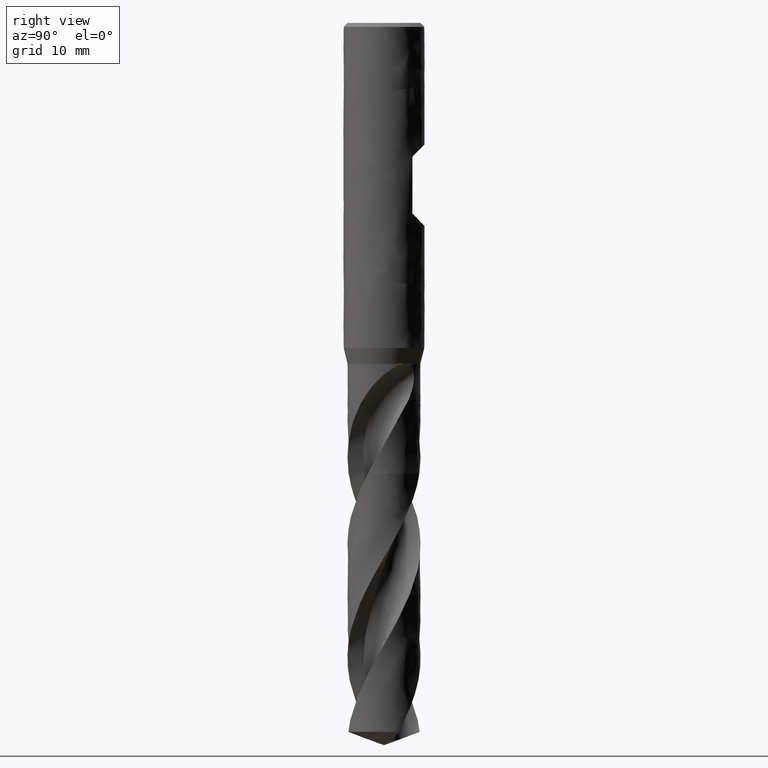
[diagram: clean part render]
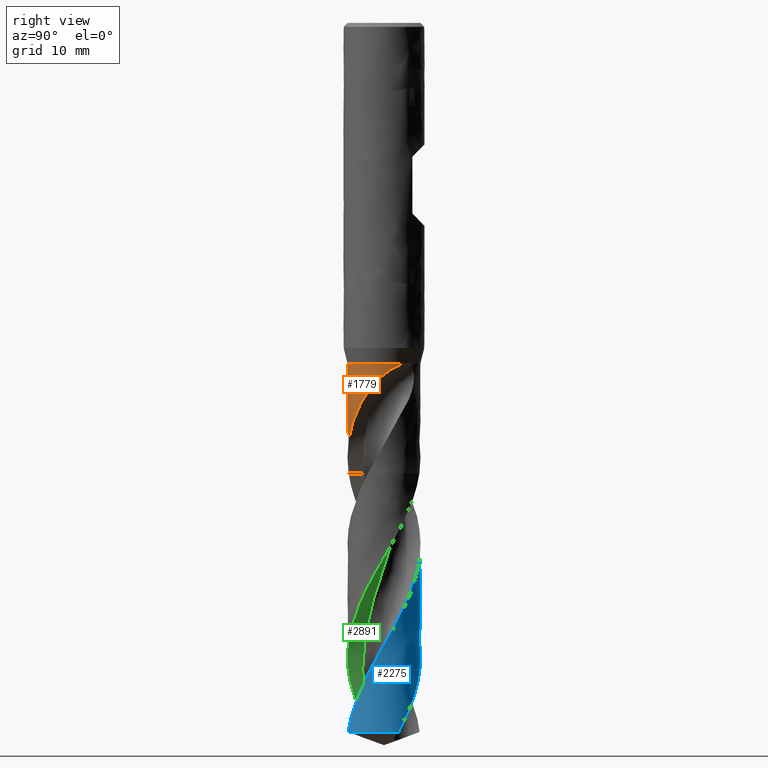
[diagram: same view with three faces highlighted in distinct colors, each labeled with its STEP entity id]
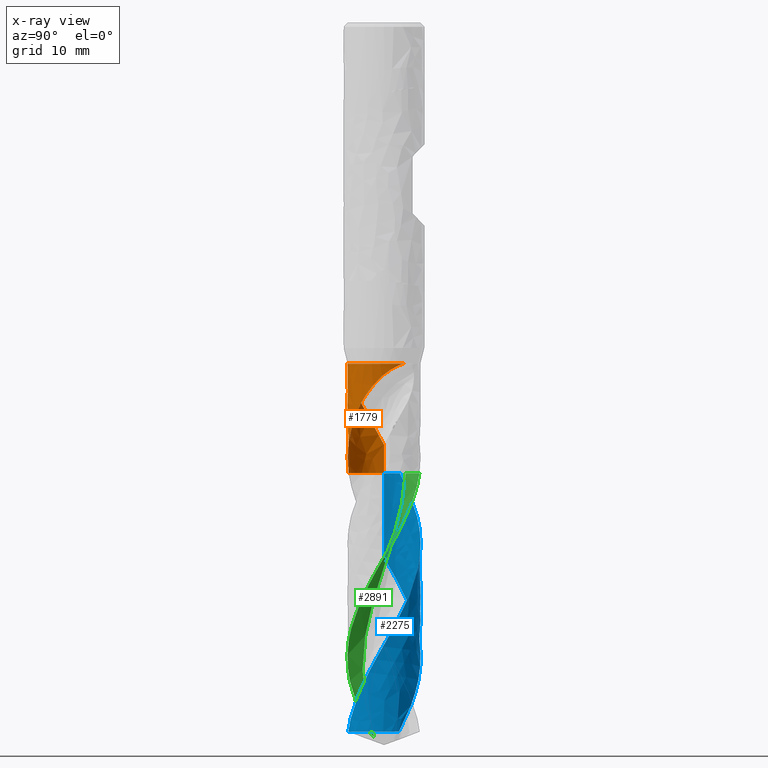
[diagram: x-ray of the same camera — body ghosted, the three highlighted faces saturated]
A machine part, right view with three faces highlighted in distinct colors.
The next image is the same camera in x-ray (body ghosted, the three faces saturated) — at least one of them is partly hidden behind the body in this view.
Their STEP definitions:

[orange] entity #1779 — the highlighted face is a freeform B-spline surface patch.
#75 = VERTEX_POINT('', #76);
#76 = CARTESIAN_POINT('', (-3.44069391722671, -2.9002802223163, -42.));
#86 = EDGE_CURVE('', #87, #75, #89, .T.);
#87 = VERTEX_POINT('', #88);
#88 = CARTESIAN_POINT('', (3.72173152774885, 2.52956803335278, -42.));
#89 = CIRCLE('', #90, 4.5);
#90 = AXIS2_PLACEMENT_3D('', #91, #92, #93);
#91 = CARTESIAN_POINT('', (1.57474777179495E-31, 2.57175827820944E-15, -42.));
#92 = DIRECTION('', (3.74939945665464E-33, 6.12323399573677E-17, -1.));
#93 = DIRECTION('', (-1., 6.12323399573677E-17, 0.));
#523 = VERTEX_POINT('', #524);
#524 = CARTESIAN_POINT('', (-1.11183896799399, -4.36048324262919, -55.5));
#533 = VERTEX_POINT('', #534);
#534 = CARTESIAN_POINT('', (4.29539669869406, -1.34147948208244, -44.6514118858238));
#554 = EDGE_CURVE('', #533, #523, #555, .T.);
#555 = B_SPLINE_CURVE_WITH_KNOTS('', 3, (#556, #557, #558, #559, #560, #561, #562, #563, #564, #565, #566, #567, #568, #569, #570, #571, #572, #573, #574, #575, #576, #577, #578, #579, #580, #581, #582, #583, #584, #585, #586, #587, #588, #589, #590, #591, #592, #593, #594, #595, #596, #597, #598, #599, #600, #601, #602, #603, #604, #605, #606, #607, #608, #609, #610, #611, #612, #613, #614, #615, #616, #617, #618, #619, #620, #621, #622, #623, #624, #625, #626, #627, #628, #629, #630, #631, #632, #633, #634, #635, #636, #637, #638, #639, #640, #641, #642, #643, #644, #645, #646, #647, #648, #649, #650, #651, #652, #653, #654, #655, #656, #657, #658, #659, #660, #661, #662, #663, #664), .UNSPECIFIED., .F., .U., (4, 3, 3, 3, 3, 3, 3, 3, 3, 3, 3, 3, 3, 3, 3, 3, 3, 3, 3, 3, 3, 3, 3, 3, 3, 3, 3, 3, 3, 3, 3, 3, 3, 3, 3, 3, 4), (0., 0.442316919703614, 0.884663411420729, 1.17981335267308, 1.47498446681071, 1.7701781735896, 2.21274049600664, 2.50800136069736, 2.8032924095188, 3.09861383894043, 3.39397508685774, 3.6893760138176, 3.9848130476933, 4.64955487547151, 4.94504723879927, 5.24058594565355, 5.53618187669094, 5.83180772391068, 6.02885477657867, 6.22586025083168, 6.42284567200576, 6.61983339189686, 6.81684562731947, 7.26003274004493, 7.70307422773444, 8.14605008551358, 8.58901752051184, 9.03195736241554, 9.47484739424819, 9.67180070334425, 10.114654115417, 10.5575013692184, 10.6158817940916, 11.2821115342085, 11.5779058537086, 12.2439721220954, 12.8428846972362), .UNSPECIFIED.);
#556 = CARTESIAN_POINT('', (4.29539669869406, -1.34147948208244, -44.6514118858238));
#557 = CARTESIAN_POINT('', (4.26703302288412, -1.43229953640613, -44.7640416796425));
#558 = CARTESIAN_POINT('', (4.23598446240087, -1.5215878332831, -44.877272118116));
#559 = CARTESIAN_POINT('', (4.20245100871911, -1.60916298718193, -44.9910453607182));
#560 = CARTESIAN_POINT('', (4.16891531308887, -1.696743996099, -45.1048262098661));
#561 = CARTESIAN_POINT('', (4.13287982148164, -1.78264919245886, -45.2191994039562));
#562 = CARTESIAN_POINT('', (4.09455913170755, -1.86670445356265, -45.3341228369591));
#563 = CARTESIAN_POINT('', (4.06899015004418, -1.92278923289577, -45.4108040023678));
#564 = CARTESIAN_POINT('', (4.0423978278864, -1.97806503375079, -45.4877467244849));
#565 = CARTESIAN_POINT('', (4.01484450553339, -2.03249196711534, -45.5649335094706));
#566 = CARTESIAN_POINT('', (3.98728920661439, -2.08692280485206, -45.6421258315298));
#567 = CARTESIAN_POINT('', (3.95876787544659, -2.14051428162229, -45.7195757961143));
#568 = CARTESIAN_POINT('', (3.92934472401294, -2.19322822338936, -45.7972686766326));
#569 = CARTESIAN_POINT('', (3.89991932050694, -2.24594619992514, -45.8749675038282));
#570 = CARTESIAN_POINT('', (3.86958690097149, -2.29779550232363, -45.9529224163218));
#571 = CARTESIAN_POINT('', (3.83841444450393, -2.34873892806834, -46.0311221126145));
#572 = CARTESIAN_POINT('', (3.79167986170992, -2.42511467826801, -46.1483611946438));
#573 = CARTESIAN_POINT('', (3.74304534327969, -2.49947247374775, -46.2661897243262));
#574 = CARTESIAN_POINT('', (3.69273093785549, -2.57171892332836, -46.3845590190456));
#575 = CARTESIAN_POINT('', (3.65916306707333, -2.61991902553658, -46.4635305413406));
#576 = CARTESIAN_POINT('', (3.62484074910354, -2.66718962705234, -46.5427578155728));
#577 = CARTESIAN_POINT('', (3.58983048937862, -2.71350641376202, -46.6222285027361));
#578 = CARTESIAN_POINT('', (3.5548166506008, -2.75982793537602, -46.7017073140835));
#579 = CARTESIAN_POINT('', (3.51910943720359, -2.80520239251452, -46.7814413729313));
#580 = CARTESIAN_POINT('', (3.48277803967741, -2.84960648622592, -46.8614216188627));
#581 = CARTESIAN_POINT('', (3.44644290424699, -2.89401514838943, -46.9414100934481));
#582 = CARTESIAN_POINT('', (3.40947978399968, -2.93745790307385, -47.0216579124377));
#583 = CARTESIAN_POINT('', (3.37195357508556, -2.97992098678266, -47.1021513753703));
#584 = CARTESIAN_POINT('', (3.33442230647364, -3.02238979583323, -47.1826556913203));
#585 = CARTESIAN_POINT('', (3.29632196275392, -3.0638853058775, -47.2634160985385));
#586 = CARTESIAN_POINT('', (3.25771626373282, -3.10439764608382, -47.3444191296328));
#587 = CARTESIAN_POINT('', (3.21910537839433, -3.14491542874706, -47.4254330427326));
#588 = CARTESIAN_POINT('', (3.17998379092743, -3.18445519217679, -47.5067002908115));
#589 = CARTESIAN_POINT('', (3.14041748197054, -3.22300760764443, -47.588210803946));
#590 = CARTESIAN_POINT('', (3.10084633681559, -3.26156473538172, -47.6697312801271));
#591 = CARTESIAN_POINT('', (3.0608254662314, -3.29913898250181, -47.7515056159124));
#592 = CARTESIAN_POINT('', (3.0204240592769, -3.33572158642494, -47.8335272903121));
#593 = CARTESIAN_POINT('', (2.92951973102994, -3.41803349796064, -48.0180784179842));
#594 = CARTESIAN_POINT('', (2.83665040461999, -3.49535386325522, -48.2039630996826));
#595 = CARTESIAN_POINT('', (2.74256138533986, -3.56768230755524, -48.3910828981963));
#596 = CARTESIAN_POINT('', (2.70073674679831, -3.59983389189809, -48.4742617643029));
#597 = CARTESIAN_POINT('', (2.65866354916189, -3.6310062301845, -48.5577004100712));
#598 = CARTESIAN_POINT('', (2.61640235821721, -3.66120727355276, -48.6413881466344));
#599 = CARTESIAN_POINT('', (2.57413453924125, -3.69141305349978, -48.7250890083586));
#600 = CARTESIAN_POINT('', (2.53167048049944, -3.7206532146681, -48.8090451057766));
#601 = CARTESIAN_POINT('', (2.48906203530184, -3.74894254216029, -48.8932414611873));
#602 = CARTESIAN_POINT('', (2.44644533997181, -3.77723734722147, -48.9774541192601));
#603 = CARTESIAN_POINT('', (2.40367937469677, -3.80458385219288, -49.0619155363511));
#604 = CARTESIAN_POINT('', (2.36083431713313, -3.83098699123957, -49.1466251921457));
#605 = CARTESIAN_POINT('', (2.31798492337803, -3.85739280245134, -49.2313434210945));
#606 = CARTESIAN_POINT('', (2.27505168108673, -3.88285761557548, -49.3163182382829));
#607 = CARTESIAN_POINT('', (2.23213053143173, -3.90737677869063, -49.4015655331349));
#608 = CARTESIAN_POINT('', (2.20352178116115, -3.92371983147564, -49.4583864381961));
#609 = CARTESIAN_POINT('', (2.17492043288559, -3.93964196099856, -49.5153337450176));
#610 = CARTESIAN_POINT('', (2.14633623603314, -3.9551536963677, -49.5723995051061));
#611 = CARTESIAN_POINT('', (2.11775807066191, -3.97066215864363, -49.6294532238887));
#612 = CARTESIAN_POINT('', (2.08919598984207, -3.98576117404228, -49.6866277017202));
#613 = CARTESIAN_POINT('', (2.06063699857145, -4.00047186718247, -49.7439018694576));
#614 = CARTESIAN_POINT('', (2.03208091430485, -4.01518106292931, -49.801170207289));
#615 = CARTESIAN_POINT('', (2.00352695701577, -4.02950270930624, -49.8585403052117));
#616 = CARTESIAN_POINT('', (1.97493742309401, -4.0434666036537, -49.9159782814201));
#617 = CARTESIAN_POINT('', (1.94634755554731, -4.05743066095252, -49.9734169278997));
#618 = CARTESIAN_POINT('', (1.91772120518949, -4.07103759030877, -50.0309252053642));
#619 = CARTESIAN_POINT('', (1.88899537123002, -4.08432325942396, -50.0884568574479));
#620 = CARTESIAN_POINT('', (1.86026596228076, -4.0976105819683, -50.1459956694654));
#621 = CARTESIAN_POINT('', (1.8314343988039, -4.11057791684065, -50.203558338987));
#622 = CARTESIAN_POINT('', (1.80241900273627, -4.12326154137415, -50.2610898888278));
#623 = CARTESIAN_POINT('', (1.73714767793651, -4.15179387554029, -50.3905094723876));
#624 = CARTESIAN_POINT('', (1.67099240158538, -4.17886491749489, -50.5198167982899));
#625 = CARTESIAN_POINT('', (1.60408906283004, -4.20439035753211, -50.6490308212022));
#626 = CARTESIAN_POINT('', (1.53720770756843, -4.22990741026966, -50.7782023862086));
#627 = CARTESIAN_POINT('', (1.46957002223301, -4.25388450157391, -50.9072981764263));
#628 = CARTESIAN_POINT('', (1.40124605299674, -4.27627285132287, -51.0362947883646));
#629 = CARTESIAN_POINT('', (1.33293220492543, -4.29865788457568, -51.1652722914015));
#630 = CARTESIAN_POINT('', (1.26391377986457, -4.31946067746219, -51.2941631108594));
#631 = CARTESIAN_POINT('', (1.19426446908471, -4.33863254699932, -51.4229438577435));
#632 = CARTESIAN_POINT('', (1.1246164826228, -4.35780405200088, -51.5517221559794));
#633 = CARTESIAN_POINT('', (1.05432818150173, -4.3753470670706, -51.6804087188353));
#634 = CARTESIAN_POINT('', (0.983489254019049, -4.39121268981918, -51.8089869716103));
#635 = CARTESIAN_POINT('', (0.912654739197595, -4.40707732427473, -51.9375572150564));
#636 = CARTESIAN_POINT('', (0.84125914165282, -4.42126688629207, -52.0660373692451));
#637 = CARTESIAN_POINT('', (0.769409567440227, -4.43373532335112, -52.1944184401978));
#638 = CARTESIAN_POINT('', (0.697568072953273, -4.44620235829259, -52.3227850742684));
#639 = CARTESIAN_POINT('', (0.625262735416338, -4.45695035750218, -52.4510715957801));
#640 = CARTESIAN_POINT('', (0.552604986505964, -4.46594085595507, -52.5792692653916));
#641 = CARTESIAN_POINT('', (0.520294067201336, -4.46993893288941, -52.6362788014696));
#642 = CARTESIAN_POINT('', (0.487912006949022, -4.47358976100607, -52.6932734800191));
#643 = CARTESIAN_POINT('', (0.455468494529896, -4.4768904889991, -52.7502523447493));
#644 = CARTESIAN_POINT('', (0.382518614985474, -4.48431224119382, -52.8783704493784));
#645 = CARTESIAN_POINT('', (0.309242223894214, -4.48996441690553, -53.0064178839288));
#646 = CARTESIAN_POINT('', (0.235782286221555, -4.49381872281294, -53.1344014686107));
#647 = CARTESIAN_POINT('', (0.162323370074785, -4.49767297512279, -53.2623832735669));
#648 = CARTESIAN_POINT('', (0.088670210823042, -4.49972863895085, -53.390320478117));
#649 = CARTESIAN_POINT('', (0.0150484078853029, -4.49997483830967, -53.5182664805565));
#650 = CARTESIAN_POINT('', (0.00534286698255215, -4.50000729469965, -53.5351335649047));
#651 = CARTESIAN_POINT('', (-0.00436206600224824, -4.50000834886925, -53.5520010887193));
#652 = CARTESIAN_POINT('', (-0.0140660132762324, -4.49997801630969, -53.568869093915));
#653 = CARTESIAN_POINT('', (-0.124806184908924, -4.49963186512434, -53.7613645535184));
#654 = CARTESIAN_POINT('', (-0.235437119924951, -4.49519748621445, -53.9539586342081));
#655 = CARTESIAN_POINT('', (-0.345704486119695, -4.4867012836022, -54.146538305761));
#656 = CARTESIAN_POINT('', (-0.394661262712901, -4.48292911865864, -54.2320403022444));
#657 = CARTESIAN_POINT('', (-0.443553087976092, -4.47835593161567, -54.317547926119));
#658 = CARTESIAN_POINT('', (-0.492362173052154, -4.47298328753276, -54.4030487712318));
#659 = CARTESIAN_POINT('', (-0.602269913048384, -4.46088522898409, -54.5955785971743));
#660 = CARTESIAN_POINT('', (-0.711779287959528, -4.4447274967744, -54.7881238698577));
#661 = CARTESIAN_POINT('', (-0.820524786026728, -4.42456089070045, -54.9806375910798));
#662 = CARTESIAN_POINT('', (-0.918306417335176, -4.40642750886016, -55.1537418210933));
#663 = CARTESIAN_POINT('', (-1.01549655610529, -4.38504869600858, -55.3268820645381));
#664 = CARTESIAN_POINT('', (-1.11183896799399, -4.36048324262919, -55.5));
#887 = EDGE_CURVE('', #533, #87, #888, .T.);
#888 = B_SPLINE_CURVE_WITH_KNOTS('', 3, (#889, #890, #891, #892, #893, #894, #895, #896, #897, #898, #899, #900, #901, #902, #903, #904, #905, #906, #907, #908, #909, #910, #911, #912, #913, #914, #915, #916, #917, #918, #919, #920, #921, #922, #923, #924, #925, #926, #927, #928, #929, #930, #931, #932, #933, #934, #935, #936, #937, #938, #939, #940, #941, #942, #943), .UNSPECIFIED., .F., .U., (4, 3, 3, 3, 3, 3, 3, 3, 3, 3, 3, 3, 3, 3, 3, 3, 3, 3, 4), (0., 0.447380350143243, 0.894897015395336, 1.3424632426885, 1.78998473153669, 1.87771071181494, 1.93617527716835, 2.23535694717134, 2.5345971215063, 2.83387898068143, 3.13318138583523, 3.43247645087693, 3.73172578677382, 4.03087465767769, 4.22940212511567, 4.42784140952585, 4.62615929176112, 4.8243119460954, 4.93825071399921), .UNSPECIFIED.);
#889 = CARTESIAN_POINT('', (4.29539669869406, -1.34147948208244, -44.6514118858238));
#890 = CARTESIAN_POINT('', (4.32408506816386, -1.24961976364664, -44.5374927605302));
#891 = CARTESIAN_POINT('', (4.35057512189034, -1.15443300244147, -44.4256059738919));
#892 = CARTESIAN_POINT('', (4.37430159509922, -1.05616549608117, -44.3159731814237));
#893 = CARTESIAN_POINT('', (4.39803529767519, -0.957868047981538, -44.2063069842562));
#894 = CARTESIAN_POINT('', (4.41902552932334, -0.856394272690696, -44.0987818685925));
#895 = CARTESIAN_POINT('', (4.43671063472103, -0.75206299187854, -43.9936411408358));
#896 = CARTESIAN_POINT('', (4.45439769872717, -0.647720156477188, -43.8884887688445));
#897 = CARTESIAN_POINT('', (4.46879832793187, -0.540402390431012, -43.7856030435393));
#898 = CARTESIAN_POINT('', (4.47936178043881, -0.430485818516774, -43.6852833467799));
#899 = CARTESIAN_POINT('', (4.48992417702953, -0.320580233795504, -43.5849736779156));
#900 = CARTESIAN_POINT('', (4.4966627626958, -0.20793449241316, -43.4871052190702));
#901 = CARTESIAN_POINT('', (4.49903864304257, -0.0930123024641114, -43.392025900119));
#902 = CARTESIAN_POINT('', (4.49950437806902, -0.0704845311274726, -43.3733878533056));
#903 = CARTESIAN_POINT('', (4.49980270937699, -0.0478658886663109, -43.354854158472));
#904 = CARTESIAN_POINT('', (4.49992966242508, -0.0251601515675194, -43.3364278846963));
#905 = CARTESIAN_POINT('', (4.50001426968457, -0.0100280202844153, -43.3241477815392));
#906 = CARTESIAN_POINT('', (4.50002276376129, 0.00514326660429612, -43.3119150065098));
#907 = CARTESIAN_POINT('', (4.49995397454265, 0.0203525673515486, -43.2997305111189));
#908 = CARTESIAN_POINT('', (4.49960195835666, 0.0981833691309666, -43.2373785949258));
#909 = CARTESIAN_POINT('', (4.49722502273323, 0.177043287703379, -43.1762634882786));
#910 = CARTESIAN_POINT('', (4.49266833680893, 0.256770744898528, -43.1165283373492));
#911 = CARTESIAN_POINT('', (4.48811075983451, 0.336513792626419, -43.0567815053395));
#912 = CARTESIAN_POINT('', (4.48136907049895, 0.417184457394232, -42.998370165985));
#913 = CARTESIAN_POINT('', (4.47229175854021, 0.498604479017039, -42.9414685703084));
#914 = CARTESIAN_POINT('', (4.46321318209116, 0.580035842634936, -42.8845590481095));
#915 = CARTESIAN_POINT('', (4.45179056072341, 0.662285131379562, -42.8291115503776));
#916 = CARTESIAN_POINT('', (4.43787630436955, 0.74515361309951, -42.775339908637));
#917 = CARTESIAN_POINT('', (4.42396109278903, 0.828027783817992, -42.7215645754231));
#918 = CARTESIAN_POINT('', (4.40754041236613, 0.911600161909595, -42.6694135705193));
#919 = CARTESIAN_POINT('', (4.38847223169022, 0.995646258308565, -42.6191521945564));
#920 = CARTESIAN_POINT('', (4.36940451864364, 1.07969029355547, -42.5688920512069));
#921 = CARTESIAN_POINT('', (4.34766812773619, 1.16430021738919, -42.5204655131157));
#922 = CARTESIAN_POINT('', (4.32313015540568, 1.24921801917121, -42.474206304245));
#923 = CARTESIAN_POINT('', (4.29859593221982, 1.33412284640434, -42.427954163296));
#924 = CARTESIAN_POINT('', (4.2712287259808, 1.41944478498498, -42.3838079720166));
#925 = CARTESIAN_POINT('', (4.24091207942414, 1.50488030573677, -42.3421943796144));
#926 = CARTESIAN_POINT('', (4.21060561087399, 1.59028714378833, -42.3005947578672));
#927 = CARTESIAN_POINT('', (4.17730356464705, 1.67593973393992, -42.2614599709309));
#928 = CARTESIAN_POINT('', (4.1409207782757, 1.76146958760138, -42.2253452157752));
#929 = CARTESIAN_POINT('', (4.11677566813433, 1.8182307085324, -42.2013779821482));
#930 = CARTESIAN_POINT('', (4.09125031582411, 1.87499410677504, -42.1787185913911));
#931 = CARTESIAN_POINT('', (4.06433368952848, 1.93162927606821, -42.1575716694209));
#932 = CARTESIAN_POINT('', (4.0374290192087, 1.98823928883884, -42.1364341406075));
#933 = CARTESIAN_POINT('', (4.009107476955, 2.04477672247036, -42.1167866862191));
#934 = CARTESIAN_POINT('', (3.97937674569605, 2.10108560411363, -42.0988773751732));
#935 = CARTESIAN_POINT('', (3.94966420325211, 2.15736003682851, -42.0809790207749));
#936 = CARTESIAN_POINT('', (3.91850859640666, 2.21347230956991, -42.0647953742415));
#937 = CARTESIAN_POINT('', (3.88594764625455, 2.26923134355419, -42.0506280632629));
#938 = CARTESIAN_POINT('', (3.85341382415255, 2.32494392207997, -42.0364725557336));
#939 = CARTESIAN_POINT('', (3.81942914555438, 2.38038391571042, -42.0243096036238));
#940 = CARTESIAN_POINT('', (3.78407974105027, 2.43531117382828, -42.0145047427463));
#941 = CARTESIAN_POINT('', (3.76375365655313, 2.46689462213136, -42.008866898673));
#942 = CARTESIAN_POINT('', (3.74296180251267, 2.49833211406163, -42.0040052444348));
#943 = CARTESIAN_POINT('', (3.72173152774885, 2.52956803335278, -42.));
#1170 = EDGE_CURVE('', #1171, #1173, #1175, .T.);
#1171 = VERTEX_POINT('', #1172);
#1172 = CARTESIAN_POINT('', (-4.12385104394005, -1.80106983967712, -48.6947415750099));
#1173 = VERTEX_POINT('', #1174);
#1174 = CARTESIAN_POINT('', (-4.45194043634564, -0.655916420918673, -50.7856573626947));
#1175 = B_SPLINE_CURVE_WITH_KNOTS('', 3, (#1176, #1177, #1178, #1179, #1180, #1181, #1182, #1183, #1184, #1185, #1186, #1187, #1188, #1189, #1190, #1191, #1192, #1193, #1194, #1195, #1196, #1197, #1198, #1199, #1200, #1201, #1202, #1203, #1204, #1205, #1206, #1207, #1208, #1209), .UNSPECIFIED., .F., .U., (4, 3, 3, 3, 3, 3, 3, 3, 3, 3, 3, 4), (0., 0.295439691773834, 0.590954220280569, 0.787983847565842, 0.875555856625251, 1.07256570003711, 1.26954016174876, 1.46650024332261, 1.66346796548771, 1.79480972052039, 2.23788693835514, 2.40915931169225), .UNSPECIFIED.);
#1176 = CARTESIAN_POINT('', (-4.12385104394005, -1.80106983967712, -48.6947415750099));
#1177 = CARTESIAN_POINT('', (-4.14544930899904, -1.75161699451328, -48.7771200990048));
#1178 = CARTESIAN_POINT('', (-4.16589055044593, -1.70238668048791, -48.8599450351426));
#1179 = CARTESIAN_POINT('', (-4.18521003168944, -1.65348631401867, -48.9432144891314));
#1180 = CARTESIAN_POINT('', (-4.20453440667911, -1.60457356077891, -49.0265050357968));
#1181 = CARTESIAN_POINT('', (-4.22273952415076, -1.55598233144152, -49.11025370718));
#1182 = CARTESIAN_POINT('', (-4.23985833506833, -1.50784657659626, -49.1944742479068));
#1183 = CARTESIAN_POINT('', (-4.25127203087441, -1.47575282511751, -49.2506269583438));
#1184 = CARTESIAN_POINT('', (-4.26220384567453, -1.44385913063201, -49.3069949328159));
#1185 = CARTESIAN_POINT('', (-4.27266327852273, -1.41221404481172, -49.3635864254033));
#1186 = CARTESIAN_POINT('', (-4.27731208977391, -1.39814903448651, -49.388739143651));
#1187 = CARTESIAN_POINT('', (-4.28186755264805, -1.38413335881177, -49.4139369652219));
#1188 = CARTESIAN_POINT('', (-4.28633103197485, -1.37017016619449, -49.4391798216565));
#1189 = CARTESIAN_POINT('', (-4.29637247527036, -1.33875731612279, -49.4959684148024));
#1190 = CARTESIAN_POINT('', (-4.30594987720016, -1.30760659614793, -49.552986506774));
#1191 = CARTESIAN_POINT('', (-4.31509639359054, -1.2766922550176, -49.6101982782461));
#1192 = CARTESIAN_POINT('', (-4.32424126732544, -1.24578346590403, -49.6673997748521));
#1193 = CARTESIAN_POINT('', (-4.33295615235126, -1.21510915431608, -49.7247985164359));
#1194 = CARTESIAN_POINT('', (-4.34127774492714, -1.18461282341544, -49.7823460452505));
#1195 = CARTESIAN_POINT('', (-4.34959872998443, -1.1541187189021, -49.8398893728027));
#1196 = CARTESIAN_POINT('', (-4.35752708512729, -1.12380108626086, -49.8975841916973));
#1197 = CARTESIAN_POINT('', (-4.36510037109096, -1.09357155701015, -49.9553698702792));
#1198 = CARTESIAN_POINT('', (-4.37267395084198, -1.06334085507777, -50.0131577905171));
#1199 = CARTESIAN_POINT('', (-4.37989292459683, -1.03319704375896, -50.0710384762165));
#1200 = CARTESIAN_POINT('', (-4.38679241902818, -1.0030215712321, -50.1289395643701));
#1201 = CARTESIAN_POINT('', (-4.39139313074627, -0.982900002697662, -50.1675490911128));
#1202 = CARTESIAN_POINT('', (-4.3958518325881, -0.962763280368107, -50.2061679054679));
#1203 = CARTESIAN_POINT('', (-4.40017741408164, -0.942570275685479, -50.2447719406265));
#1204 = CARTESIAN_POINT('', (-4.41476962516635, -0.874449819001489, -50.3750014208935));
#1205 = CARTESIAN_POINT('', (-4.42783841378979, -0.805713948395509, -50.5050903682347));
#1206 = CARTESIAN_POINT('', (-4.43932713893653, -0.736460829577264, -50.6350328997717));
#1207 = CARTESIAN_POINT('', (-4.4437681283246, -0.709690899769179, -50.6852624418875));
#1208 = CARTESIAN_POINT('', (-4.44797342838624, -0.68284192938669, -50.7354713260767));
#1209 = CARTESIAN_POINT('', (-4.45194043634564, -0.655916420918673, -50.7856573626947));
#1248 = VERTEX_POINT('', #1249);
#1249 = CARTESIAN_POINT('', (-4.5, 3.45818331716068E-15, -51.9764194797783));
#1280 = EDGE_CURVE('', #1173, #1248, #1281, .T.);
#1281 = B_SPLINE_CURVE_WITH_KNOTS('', 3, (#1282, #1283, #1284, #1285, #1286, #1287, #1288, #1289, #1290, #1291), .UNSPECIFIED., .F., .U., (4, 3, 3, 4), (0., 0.295395020657576, 0.959313315075293, 1.36056517111198), .UNSPECIFIED.);
#1282 = CARTESIAN_POINT('', (-4.45194043634564, -0.655916420918664, -50.7856573626947));
#1283 = CARTESIAN_POINT('', (-4.458782371068, -0.609477751475632, -50.8722136766796));
#1284 = CARTESIAN_POINT('', (-4.46491948193014, -0.562784455645427, -50.9586924824124));
#1285 = CARTESIAN_POINT('', (-4.4703356008188, -0.51584844290938, -51.0450813355455));
#1286 = CARTESIAN_POINT('', (-4.48250865778815, -0.410356896528143, -51.239245542854));
#1287 = CARTESIAN_POINT('', (-4.49103893057927, -0.303598287924388, -51.432989835455));
#1288 = CARTESIAN_POINT('', (-4.49573017685656, -0.195985144593484, -51.626312862186));
#1289 = CARTESIAN_POINT('', (-4.49856542223496, -0.130947061054397, -51.7431513706932));
#1290 = CARTESIAN_POINT('', (-4.5, -0.0655872548464134, -51.8598538759378));
#1291 = CARTESIAN_POINT('', (-4.5, 4.4225159280496E-15, -51.9764194797783));
#1294 = EDGE_CURVE('', #1171, #75, #1295, .T.);
#1295 = B_SPLINE_CURVE_WITH_KNOTS('', 3, (#1296, #1297, #1298, #1299, #1300, #1301, #1302, #1303, #1304, #1305, #1306, #1307, #1308, #1309, #1310, #1311, #1312, #1313, #1314, #1315, #1316, #1317, #1318, #1319, #1320, #1321, #1322, #1323, #1324, #1325, #1326, #1327, #1328, #1329, #1330, #1331, #1332, #1333, #1334, #1335, #1336, #1337, #1338, #1339, #1340, #1341, #1342, #1343, #1344, #1345, #1346, #1347, #1348, #1349, #1350, #1351, #1352, #1353, #1354, #1355, #1356, #1357, #1358, #1359, #1360, #1361, #1362, #1363, #1364, #1365, #1366, #1367, #1368, #1369, #1370, #1371, #1372, #1373, #1374, #1375, #1376, #1377, #1378, #1379, #1380, #1381, #1382, #1383, #1384, #1385, #1386, #1387, #1388, #1389, #1390, #1391, #1392, #1393, #1394, #1395, #1396, #1397, #1398, #1399, #1400, #1401, #1402, #1403, #1404), .UNSPECIFIED., .F., .U., (4, 3, 3, 3, 3, 3, 3, 3, 3, 3, 3, 3, 3, 3, 3, 3, 3, 3, 3, 3, 3, 3, 3, 3, 3, 3, 3, 3, 3, 3, 3, 3, 3, 3, 3, 3, 4), (0., 0.197102835893202, 0.492773784466252, 0.788351550341597, 1.08381636993702, 1.37915202014639, 1.67435693164854, 1.96942957314415, 2.26436904922048, 2.55916718057986, 2.85382937971016, 3.14836667456289, 3.44278902684675, 3.73711664324876, 4.03137973282776, 4.32561096089563, 4.61985731561039, 4.91418934823696, 5.2086983319077, 5.50351688054433, 5.79884051974257, 5.99604939918179, 6.1935602455424, 6.32531387054735, 6.45722165456507, 6.58930228822603, 6.7215695845346, 6.85402529722238, 6.98665129956756, 7.11940309426149, 7.25220950836679, 7.38498253623144, 7.51763558592294, 7.65010177584361, 7.78234361296872, 7.91435190113674, 7.96430875350276), .UNSPECIFIED.);
#1296 = CARTESIAN_POINT('', (-4.12385104394005, -1.80106983967711, -48.6947415750099));
#1297 = CARTESIAN_POINT('', (-4.10944174345662, -1.83406234642615, -48.6397826742657));
#1298 = CARTESIAN_POINT('', (-4.09454689651569, -1.86708620827441, -48.5849677086219));
#1299 = CARTESIAN_POINT('', (-4.07917594485883, -1.90008515885101, -48.5302738577882));
#1300 = CARTESIAN_POINT('', (-4.05611821544434, -1.94958637974762, -48.4482284489343));
#1301 = CARTESIAN_POINT('', (-4.03198536726886, -1.99903701407781, -48.366447812066));
#1302 = CARTESIAN_POINT('', (-4.00682741203289, -2.04825147142185, -48.2848482204819));
#1303 = CARTESIAN_POINT('', (-3.98167738549654, -2.09745041849706, -48.2032743455607));
#1304 = CARTESIAN_POINT('', (-3.95549993863972, -2.14641890998528, -48.1218716841581));
#1305 = CARTESIAN_POINT('', (-3.92836864345227, -2.19497603657556, -48.0405485289285));
#1306 = CARTESIAN_POINT('', (-3.90124771568488, -2.24351460849955, -47.9592564489315));
#1307 = CARTESIAN_POINT('', (-3.87317059186955, -2.29164746575903, -47.8780346241867));
#1308 = CARTESIAN_POINT('', (-3.84423492364582, -2.33920025902483, -47.7967856308718));
#1309 = CARTESIAN_POINT('', (-3.81531190532912, -2.38673226347008, -47.7155721574628));
#1310 = CARTESIAN_POINT('', (-3.78552813446016, -2.43368940899766, -47.6343220292485));
#1311 = CARTESIAN_POINT('', (-3.75500652918405, -2.4799044267447, -47.5529336735439));
#1312 = CARTESIAN_POINT('', (-3.72449843516272, -2.52609898610255, -47.4715813467048));
#1313 = CARTESIAN_POINT('', (-3.69324978738854, -2.57155741635925, -47.3900814771553));
#1314 = CARTESIAN_POINT('', (-3.66139905924397, -2.61613396617383, -47.3083419853505));
#1315 = CARTESIAN_POINT('', (-3.62956260218995, -2.66069054294491, -47.2266391178791));
#1316 = CARTESIAN_POINT('', (-3.59712066293459, -2.70437172633961, -47.1446868116561));
#1317 = CARTESIAN_POINT('', (-3.56422679716253, -2.74705066178053, -47.0624024926849));
#1318 = CARTESIAN_POINT('', (-3.53134777629579, -2.78971033634283, -46.980155308386));
#1319 = CARTESIAN_POINT('', (-3.4980116015033, -2.83137596284773, -46.8975663306031));
#1320 = CARTESIAN_POINT('', (-3.46439192168034, -2.87193116439026, -46.8145574760847));
#1321 = CARTESIAN_POINT('', (-3.43078835351592, -2.91246693054369, -46.7315884021449));
#1322 = CARTESIAN_POINT('', (-3.39689754157661, -2.95189818134495, -46.6481857348355));
#1323 = CARTESIAN_POINT('', (-3.3629133691534, -2.99011934069013, -46.5642784385826));
#1324 = CARTESIAN_POINT('', (-3.32894486692555, -3.02832287615364, -46.4804098322149));
#1325 = CARTESIAN_POINT('', (-3.29487685640257, -3.06532454623204, -46.3960221168194));
#1326 = CARTESIAN_POINT('', (-3.26092022794701, -3.10103196806578, -46.311056007049));
#1327 = CARTESIAN_POINT('', (-3.22697799335723, -3.13672425389041, -46.2261259135393));
#1328 = CARTESIAN_POINT('', (-3.1931394908543, -3.17113136009744, -46.1406002333629));
#1329 = CARTESIAN_POINT('', (-3.15963654930072, -3.20416867164058, -46.0544304921937));
#1330 = CARTESIAN_POINT('', (-3.12614668220065, -3.23719309044136, -45.9682943785874));
#1331 = CARTESIAN_POINT('', (-3.09298461423684, -3.26885619546726, -45.8814921255085));
#1332 = CARTESIAN_POINT('', (-3.06040656195672, -3.29907739762685, -45.7939880515898));
#1333 = CARTESIAN_POINT('', (-3.02783899227241, -3.32928887555112, -45.7065121337385));
#1334 = CARTESIAN_POINT('', (-2.99584479393179, -3.35806902033852, -45.6183082485744));
#1335 = CARTESIAN_POINT('', (-2.96470315573492, -3.38534122332969, -45.5293597156362));
#1336 = CARTESIAN_POINT('', (-2.93356834486537, -3.41260744730796, -45.4404306833019));
#1337 = CARTESIAN_POINT('', (-2.903273499296, -3.43837717554735, -45.3507241197067));
#1338 = CARTESIAN_POINT('', (-2.87412922420207, -3.46256858453195, -45.2602443807016));
#1339 = CARTESIAN_POINT('', (-2.84498810472187, -3.48675737417734, -45.169774438444));
#1340 = CARTESIAN_POINT('', (-2.81698432614287, -3.50937905730847, -45.0784883752135));
#1341 = CARTESIAN_POINT('', (-2.79047197841208, -3.53033513107424, -44.9864174719309));
#1342 = CARTESIAN_POINT('', (-2.76395826766172, -3.55129228220739, -44.8943418352145));
#1343 = CARTESIAN_POINT('', (-2.7389195502569, -3.57059707896347, -44.801426298283));
#1344 = CARTESIAN_POINT('', (-2.71575755654577, -3.58812777003056, -44.7077443958892));
#1345 = CARTESIAN_POINT('', (-2.6925888185837, -3.60566356564009, -44.6140352154351));
#1346 = CARTESIAN_POINT('', (-2.67127879425493, -3.62143916826632, -44.5194861438142));
#1347 = CARTESIAN_POINT('', (-2.6522980202464, -3.63528750056952, -44.4242303883018));
#1348 = CARTESIAN_POINT('', (-2.63330583508514, -3.64914415842546, -44.3289173654738));
#1349 = CARTESIAN_POINT('', (-2.61662603702717, -3.66108654722024, -44.2327967112601));
#1350 = CARTESIAN_POINT('', (-2.60281781508818, -3.67087720054206, -44.1360973912047));
#1351 = CARTESIAN_POINT('', (-2.58899507901893, -3.68067814503811, -44.0392964283358));
#1352 = CARTESIAN_POINT('', (-2.5780290796607, -3.68833947824352, -43.9417752063882));
#1353 = CARTESIAN_POINT('', (-2.57059467444784, -3.69351364146667, -43.8439206683643));
#1354 = CARTESIAN_POINT('', (-2.56314753242476, -3.69869666919654, -43.7458984834817));
#1355 = CARTESIAN_POINT('', (-2.55922938610776, -3.70139773973256, -43.6473366686923));
#1356 = CARTESIAN_POINT('', (-2.55966336060007, -3.70109760481962, -43.5488968697536));
#1357 = CARTESIAN_POINT('', (-2.55995315664744, -3.70089718310593, -43.4831615209219));
#1358 = CARTESIAN_POINT('', (-2.56218671127093, -3.69935516549301, -43.417383117944));
#1359 = CARTESIAN_POINT('', (-2.56663922142728, -3.69626339795085, -43.3518707041325));
#1360 = CARTESIAN_POINT('', (-2.57109854928265, -3.69316689628348, -43.2862579774854));
#1361 = CARTESIAN_POINT('', (-2.5777933340623, -3.68851032435602, -43.2207952890536));
#1362 = CARTESIAN_POINT('', (-2.58701017784376, -3.68203453809613, -43.1559291360261));
#1363 = CARTESIAN_POINT('', (-2.59315846084537, -3.67771473323366, -43.1126588500698));
#1364 = CARTESIAN_POINT('', (-2.6004366305666, -3.67257918365187, -43.0696025814014));
#1365 = CARTESIAN_POINT('', (-2.60892488334373, -3.66653937017911, -43.0269381938789));
#1366 = CARTESIAN_POINT('', (-2.61742306784509, -3.66049248979126, -42.9842238866684));
#1367 = CARTESIAN_POINT('', (-2.62714582980873, -3.65353111877221, -42.9418477784331));
#1368 = CARTESIAN_POINT('', (-2.63816015507597, -3.64556045021469, -42.90003331892));
#1369 = CARTESIAN_POINT('', (-2.64918891332157, -3.63757933703309, -42.8581640664737));
#1370 = CARTESIAN_POINT('', (-2.66153106225892, -3.62857306834648, -42.8167925497633));
#1371 = CARTESIAN_POINT('', (-2.67522692407668, -3.61844730577843, -42.7761938025171));
#1372 = CARTESIAN_POINT('', (-2.68894214153922, -3.60830723300004, -42.735537679186));
#1373 = CARTESIAN_POINT('', (-2.70404257664038, -3.5970240233795, -42.6955796070559));
#1374 = CARTESIAN_POINT('', (-2.72052347810707, -3.58451558862117, -42.6566467471936));
#1375 = CARTESIAN_POINT('', (-2.73702785681921, -3.57198933544474, -42.617658426997));
#1376 = CARTESIAN_POINT('', (-2.75495605165356, -3.55820415667121, -42.5796103987791));
#1377 = CARTESIAN_POINT('', (-2.77423693388747, -3.54310731345448, -42.5428718148075));
#1378 = CARTESIAN_POINT('', (-2.79354260429219, -3.5279910612126, -42.5060859984383));
#1379 = CARTESIAN_POINT('', (-2.81425738507859, -3.51151762363255, -42.4705167813898));
#1380 = CARTESIAN_POINT('', (-2.83622548821922, -3.49368358326504, -42.4365498014514));
#1381 = CARTESIAN_POINT('', (-2.85821442754009, -3.47583262776938, -42.4025506047071));
#1382 = CARTESIAN_POINT('', (-2.8815256388808, -3.45656333933347, -42.370056901602));
#1383 = CARTESIAN_POINT('', (-2.9059127194085, -3.4359381931548, -42.3394302940153));
#1384 = CARTESIAN_POINT('', (-2.93030983375899, -3.41530456096398, -42.3087910854141));
#1385 = CARTESIAN_POINT('', (-2.95586162722308, -3.39324672055347, -42.2799235903449));
#1386 = CARTESIAN_POINT('', (-2.98224538445103, -3.3698979905808, -42.2531194631827));
#1387 = CARTESIAN_POINT('', (-3.00862250905905, -3.34655513025173, -42.2263220743175));
#1388 = CARTESIAN_POINT('', (-3.03591594956171, -3.32184581133799, -42.2014996300607));
#1389 = CARTESIAN_POINT('', (-3.06376054121669, -3.29596288602945, -42.178839206985));
#1390 = CARTESIAN_POINT('', (-3.09157997156224, -3.27010334940266, -42.1561992606298));
#1391 = CARTESIAN_POINT('', (-3.12003544760283, -3.24299176277465, -42.1356447896155));
#1392 = CARTESIAN_POINT('', (-3.14876129791477, -3.21485649582592, -42.1172481652552));
#1393 = CARTESIAN_POINT('', (-3.17744668397941, -3.18676086120789, -42.0988774550298));
#1394 = CARTESIAN_POINT('', (-3.20648317988396, -3.15756449163131, -42.0826031261672));
#1395 = CARTESIAN_POINT('', (-3.23553971957336, -3.12750423230139, -42.0683975863059));
#1396 = CARTESIAN_POINT('', (-3.26454704733998, -3.09749488485488, -42.0542161058108));
#1397 = CARTESIAN_POINT('', (-3.2936473990377, -3.06654939313027, -42.0420578285831));
#1398 = CARTESIAN_POINT('', (-3.32256399262147, -3.03489184567346, -42.0318240271443));
#1399 = CARTESIAN_POINT('', (-3.35142951734215, -3.0032902078089, -42.0216082993628));
#1400 = CARTESIAN_POINT('', (-3.38017450223142, -2.970911212331, -42.0132859133681));
#1401 = CARTESIAN_POINT('', (-3.40858108249611, -2.93795422089113, -42.0067173488274));
#1402 = CARTESIAN_POINT('', (-3.41933119035828, -2.92548206797832, -42.0042315593851));
#1403 = CARTESIAN_POINT('', (-3.4300387250074, -2.91292081296467, -42.0019952226215));
#1404 = CARTESIAN_POINT('', (-3.44069391722672, -2.90028022231629, -42.));
#1710 = VERTEX_POINT('', #1711);
#1711 = CARTESIAN_POINT('', (-4.5, 3.67394039744206E-15, -55.5));
#1718 = EDGE_CURVE('', #1248, #1710, #1719, .T.);
#1719 = LINE('', #1720, #1721);
#1720 = CARTESIAN_POINT('', (-4.5, 3.45818331716068E-15, -51.9764194797783));
#1721 = VECTOR('', #1722, 3.52358052022175);
#1722 = DIRECTION('', (0., 2.15757080281376E-16, -3.52358052022175));
#1779 = ADVANCED_FACE('', (#1780), #1796, .T.);
#1780 = FACE_OUTER_BOUND('', #1781, .T.);
#1781 = EDGE_LOOP('', (#1782, #1789, #1790, #1791, #1792, #1793, #1794, #1795));
#1782 = ORIENTED_EDGE('', *, *, #1783, .F.);
#1783 = EDGE_CURVE('', #523, #1710, #1784, .T.);
#1784 = CIRCLE('', #1785, 4.5);
#1785 = AXIS2_PLACEMENT_3D('', #1786, #1787, #1788);
#1786 = CARTESIAN_POINT('', (2.08091669844333E-31, 3.39839486763391E-15, -55.5));
#1787 = DIRECTION('', (3.74939945665464E-33, 6.12323399573677E-17, -1.));
#1788 = DIRECTION('', (-1., 6.12323399573677E-17, 0.));
#1789 = ORIENTED_EDGE('', *, *, #554, .F.);
#1790 = ORIENTED_EDGE('', *, *, #887, .T.);
#1791 = ORIENTED_EDGE('', *, *, #86, .T.);
#1792 = ORIENTED_EDGE('', *, *, #1294, .F.);
#1793 = ORIENTED_EDGE('', *, *, #1170, .T.);
#1794 = ORIENTED_EDGE('', *, *, #1280, .T.);
#1795 = ORIENTED_EDGE('', *, *, #1718, .T.);
#1796 = (
   BOUNDED_SURFACE ()
   B_SPLINE_SURFACE (2, 1, ((#1797, #1798), (#1799, #1800), (#1801, #1802), (#1803, #1804), (#1805, #1806), (#1807, #1808), (#1809, #1810), (#1811, #1812), (#1813, #1814)), .UNSPECIFIED., .T., .F., .U.)
   B_SPLINE_SURFACE_WITH_KNOTS ((3, 2, 2, 2, 3), (2, 2), (0., 7.06858347057704, 14.1371669411541, 21.2057504117311, 28.2743338823081), (0., 0.297605046890642), .UNSPECIFIED.)
   GEOMETRIC_REPRESENTATION_ITEM ()
   RATIONAL_B_SPLINE_SURFACE (((1., 1.), (0.707106781186548, 0.707106781186548), (1., 1.), (0.707106781186548, 0.707106781186548), (1., 1.), (0.707106781186548, 0.707106781186548), (1., 1.), (0.707106781186548, 0.707106781186548), (1., 1.)))
   REPRESENTATION_ITEM ('')
   SURFACE ()
);
#1797 = CARTESIAN_POINT('', (-4.5, 2.8473038080176E-15, -42.));
#1798 = CARTESIAN_POINT('', (-4.5, 3.67394039744206E-15, -55.5));
#1799 = CARTESIAN_POINT('', (-4.5, 4.5, -42.));
#1800 = CARTESIAN_POINT('', (-4.5, 4.5, -55.5));
#1801 = CARTESIAN_POINT('', (1.4791141972894E-31, 4.5, -42.));
#1802 = CARTESIAN_POINT('', (1.97215226305253E-31, 4.5, -55.5));
#1803 = CARTESIAN_POINT('', (4.5, 4.5, -42.));
#1804 = CARTESIAN_POINT('', (4.5, 4.5, -55.5));
#1805 = CARTESIAN_POINT('', (4.5, 2.8473038080176E-15, -42.));
#1806 = CARTESIAN_POINT('', (4.5, 3.67394039744206E-15, -55.5));
#1807 = CARTESIAN_POINT('', (4.5, -4.5, -42.));
#1808 = CARTESIAN_POINT('', (4.5, -4.5, -55.5));
#1809 = CARTESIAN_POINT('', (5.51091059616309E-16, -4.5, -42.));
#1810 = CARTESIAN_POINT('', (5.51091059616309E-16, -4.5, -55.5));
#1811 = CARTESIAN_POINT('', (-4.5, -4.5, -42.));
#1812 = CARTESIAN_POINT('', (-4.5, -4.5, -55.5));
#1813 = CARTESIAN_POINT('', (-4.5, 2.8473038080176E-15, -42.));
#1814 = CARTESIAN_POINT('', (-4.5, 3.67394039744206E-15, -55.5));

[blue] entity #2275 — the highlighted face is a freeform B-spline surface patch.
#1848 = VERTEX_POINT('', #1849);
#1849 = CARTESIAN_POINT('', (-4.5, 3.67394039744206E-15, -55.5));
#1891 = VERTEX_POINT('', #1892);
#1892 = CARTESIAN_POINT('', (-4.05198058906232, 1.95740984616462, -55.5));
#1899 = EDGE_CURVE('', #1848, #1891, #1900, .T.);
#1900 = CIRCLE('', #1901, 4.5);
#1901 = AXIS2_PLACEMENT_3D('', #1902, #1903, #1904);
#1902 = CARTESIAN_POINT('', (2.08091669844333E-31, 3.39839486763391E-15, -55.5));
#1903 = DIRECTION('', (3.74939945665464E-33, 6.12323399573677E-17, -1.));
#1904 = DIRECTION('', (-1., 6.12323399573677E-17, 0.));
#1916 = VERTEX_POINT('', #1917);
#1917 = CARTESIAN_POINT('', (-4.5, 4.30882955760185E-15, -65.8685268373188));
#1978 = EDGE_CURVE('', #1979, #1916, #1981, .T.);
#1979 = VERTEX_POINT('', #1980);
#1980 = CARTESIAN_POINT('', (4.11510305618431, 1.82096865348708, -87.3621339458021));
#1981 = B_SPLINE_CURVE_WITH_KNOTS('', 3, (#1982, #1983, #1984, #1985, #1986, #1987, #1988, #1989, #1990, #1991, #1992, #1993, #1994, #1995, #1996, #1997, #1998, #1999, #2000, #2001, #2002, #2003, #2004, #2005, #2006, #2007, #2008, #2009, #2010, #2011, #2012, #2013, #2014, #2015, #2016, #2017, #2018, #2019, #2020, #2021, #2022, #2023, #2024, #2025, #2026, #2027, #2028, #2029, #2030, #2031, #2032, #2033, #2034, #2035, #2036, #2037, #2038, #2039, #2040, #2041, #2042, #2043, #2044, #2045, #2046, #2047, #2048, #2049, #2050, #2051, #2052, #2053, #2054, #2055, #2056, #2057, #2058, #2059, #2060, #2061, #2062, #2063, #2064, #2065, #2066, #2067, #2068, #2069, #2070, #2071, #2072, #2073, #2074, #2075, #2076, #2077, #2078, #2079, #2080, #2081, #2082, #2083, #2084, #2085, #2086, #2087, #2088, #2089, #2090), .UNSPECIFIED., .F., .U., (4, 3, 3, 3, 3, 3, 3, 3, 3, 3, 3, 3, 3, 3, 3, 3, 3, 3, 3, 3, 3, 3, 3, 3, 3, 3, 3, 3, 3, 3, 3, 3, 3, 3, 3, 3, 4), (0., 0.99859184708393, 1.99680516265634, 2.99464704143196, 3.99212228369715, 4.9892334781152, 5.65394931849966, 6.31855601632816, 6.98305271971336, 7.64743864931258, 8.31171225432633, 8.97587148725755, 9.63991456977236, 10.3038390745078, 10.4351600141657, 10.4935363875251, 10.5519303306257, 11.5520717470686, 12.5517766231313, 13.5510638550507, 14.2167315639056, 14.882283546141, 15.5477215393673, 16.2130472699886, 16.8782618672956, 17.5433659444696, 18.2083602314149, 18.8732450666656, 19.5380201737142, 20.2026852558507, 20.8672398381105, 21.5316828549307, 22.1960129306639, 22.8602286552028, 23.5243281064228, 24.1883087859384, 24.7436826750014), .UNSPECIFIED.);
#1982 = CARTESIAN_POINT('', (4.11510305618431, 1.82096865348708, -87.3621339458021));
#1983 = CARTESIAN_POINT('', (4.04852627598683, 1.97142171655158, -87.0727728967379));
#1984 = CARTESIAN_POINT('', (3.97365480423399, 2.11828874702299, -86.7833152511885));
#1985 = CARTESIAN_POINT('', (3.89098842881742, 2.26057714905044, -86.493973429831));
#1986 = CARTESIAN_POINT('', (3.8083533893547, 2.40281161448302, -86.2047412879159));
#1987 = CARTESIAN_POINT('', (3.71786839333344, 2.54057573060496, -85.9154130849555));
#1988 = CARTESIAN_POINT('', (3.62013931936611, 2.67293683209677, -85.626200374768));
#1989 = CARTESIAN_POINT('', (3.52244661054601, 2.80524868180764, -85.3370952810998));
#1990 = CARTESIAN_POINT('', (3.41744288903972, 2.93225947391095, -85.0478941633368));
#1991 = CARTESIAN_POINT('', (3.30583217549582, 3.05310884631659, -84.7588084945001));
#1992 = CARTESIAN_POINT('', (3.194262471017, 3.17391381510164, -84.4698290442568));
#1993 = CARTESIAN_POINT('', (3.07600806303396, 3.2886512825207, -84.180753570181));
#1994 = CARTESIAN_POINT('', (2.95186247845288, 3.39654352368729, -83.8917935379471));
#1995 = CARTESIAN_POINT('', (2.82776220319968, 3.50439638749747, -83.6029389672557));
#1996 = CARTESIAN_POINT('', (2.69768333526765, 3.60548872639387, -83.3139883398491));
#1997 = CARTESIAN_POINT('', (2.5624991835032, 3.69913475485085, -83.0251531826655));
#1998 = CARTESIAN_POINT('', (2.47237979907565, 3.7615630966977, -82.8326036402326));
#1999 = CARTESIAN_POINT('', (2.37995615059118, 3.8207107801123, -82.6400272505443));
#2000 = CARTESIAN_POINT('', (2.28550508037854, 3.87639865436515, -82.447486388379));
#2001 = CARTESIAN_POINT('', (2.1910695184938, 3.93207738498614, -82.254977140327));
#2002 = CARTESIAN_POINT('', (2.09457629433657, 3.98431571367358, -82.0624405576507));
#2003 = CARTESIAN_POINT('', (1.99631298839615, 4.03295604394108, -81.8699400434832));
#2004 = CARTESIAN_POINT('', (1.8980659453337, 4.081588324085, -81.6774713887402));
#2005 = CARTESIAN_POINT('', (1.79801818551733, 4.12663924301536, -81.4849753261706));
#2006 = CARTESIAN_POINT('', (1.6964682381373, 4.16797259071978, -81.2925151335183));
#2007 = CARTESIAN_POINT('', (1.5949352194675, 4.2092990480192, -81.1000870246132));
#2008 = CARTESIAN_POINT('', (1.49186706826772, 4.2469227408291, -80.9076320224914));
#2009 = CARTESIAN_POINT('', (1.38757301313177, 4.2807290422577, -80.715212452029));
#2010 = CARTESIAN_POINT('', (1.28329659049825, 4.31452962821487, -80.5228254130328));
#2011 = CARTESIAN_POINT('', (1.17775997804797, 4.34452539055343, -80.3304112630931));
#2012 = CARTESIAN_POINT('', (1.07127875092974, 4.37062487955744, -80.1380330167992));
#2013 = CARTESIAN_POINT('', (0.964815857340958, 4.39671987485151, -79.9456878934541));
#2014 = CARTESIAN_POINT('', (0.857374714233416, 4.41892828296608, -79.7533152640258));
#2015 = CARTESIAN_POINT('', (0.749275843748666, 4.43718218129196, -79.5609786519075));
#2016 = CARTESIAN_POINT('', (0.641195877960557, 4.45543288731428, -79.3686756762675));
#2017 = CARTESIAN_POINT('', (0.532423321971454, 4.46973634869977, -79.1763456544428));
#2018 = CARTESIAN_POINT('', (0.42328446499874, 4.48004802002066, -78.9840511380146));
#2019 = CARTESIAN_POINT('', (0.314165096886979, 4.49035784999252, -78.7917909595042));
#2020 = CARTESIAN_POINT('', (0.204643113290155, 4.49668076371397, -78.5995038059025));
#2021 = CARTESIAN_POINT('', (0.0950468829905183, 4.49899612025109, -78.4072523800035));
#2022 = CARTESIAN_POINT('', (0.0733692978987577, 4.4994540861703, -78.3692260114637));
#2023 = CARTESIAN_POINT('', (0.0516879836958196, 4.49975538264148, -78.3311995590119));
#2024 = CARTESIAN_POINT('', (0.0300054938434504, 4.49989996225908, -78.2931735039568));
#2025 = CARTESIAN_POINT('', (0.0203669310500248, 4.49996423254041, -78.2762697017676));
#2026 = CARTESIAN_POINT('', (0.0107280952916249, 4.49999753512424, -78.259365909111));
#2027 = CARTESIAN_POINT('', (0.00108920804697657, 4.49999986818065, -78.2424621699067));
#2028 = CARTESIAN_POINT('', (-0.00855258024725824, 4.50000220193925, -78.2255533431249));
#2029 = CARTESIAN_POINT('', (-0.0181944444902765, 4.49997354753063, -78.2086445269774));
#2030 = CARTESIAN_POINT('', (-0.0278361626131979, 4.4999139045154, -78.1917357652119));
#2031 = CARTESIAN_POINT('', (-0.192974550404447, 4.49889236963411, -77.9021311924691));
#2032 = CARTESIAN_POINT('', (-0.358135490255729, 4.48876619852154, -77.6124290982402));
#2033 = CARTESIAN_POINT('', (-0.52219529452276, 4.46959864801978, -77.322844007393));
#2034 = CARTESIAN_POINT('', (-0.686183490187081, 4.45043946374467, -77.0333853142567));
#2035 = CARTESIAN_POINT('', (-0.849193927915707, 4.42223248496446, -76.743829121526));
#2036 = CARTESIAN_POINT('', (-1.0101175117544, 4.38516392081843, -76.4543899061316));
#2037 = CARTESIAN_POINT('', (-1.17097386696, 4.34811084271141, -76.1650716090162));
#2038 = CARTESIAN_POINT('', (-1.32986500415207, 4.30217596500042, -75.8756557904977));
#2039 = CARTESIAN_POINT('', (-1.48570987341474, 4.24766596756832, -75.5863569630589));
#2040 = CARTESIAN_POINT('', (-1.58952476641565, 4.21135454084207, -75.3936427148585));
#2041 = CARTESIAN_POINT('', (-1.6920322524028, 4.17122598853135, -75.2009012313289));
#2042 = CARTESIAN_POINT('', (-1.79292171446415, 4.12740011699895, -75.0081956460218));
#2043 = CARTESIAN_POINT('', (-1.89379363684881, 4.08358186461331, -74.8155235626643));
#2044 = CARTESIAN_POINT('', (-1.99308153760667, 4.03605308891331, -74.622823872118));
#2045 = CARTESIAN_POINT('', (-2.09048572973631, 3.9849553841629, -74.4301605294763));
#2046 = CARTESIAN_POINT('', (-2.18787323946154, 3.93386643091031, -74.2375301842625));
#2047 = CARTESIAN_POINT('', (-2.28340908595875, 3.87919329667893, -74.0448721168977));
#2048 = CARTESIAN_POINT('', (-2.37680480398774, 3.82109917742799, -73.8522502820647));
#2049 = CARTESIAN_POINT('', (-2.47018476570777, 3.7630148589357, -73.6596609434661));
#2050 = CARTESIAN_POINT('', (-2.56145622316349, 3.70149144472271, -73.4670443096768));
#2051 = CARTESIAN_POINT('', (-2.65034227302282, 3.63671360376759, -73.2744635211516));
#2052 = CARTESIAN_POINT('', (-2.73921347571655, 3.57194658304054, -73.0819149005409));
#2053 = CARTESIAN_POINT('', (-2.82572987701928, 3.50390452195801, -72.8893388541835));
#2054 = CARTESIAN_POINT('', (-2.90962950387182, 3.43279130594894, -72.6967990087904));
#2055 = CARTESIAN_POINT('', (-2.99351519146632, 3.36168990483709, -72.5042911523666));
#2056 = CARTESIAN_POINT('', (-3.0748121647924, 3.28749534816556, -72.3117555112194));
#2057 = CARTESIAN_POINT('', (-3.15327478040844, 3.21042959107347, -72.1192562134475));
#2058 = CARTESIAN_POINT('', (-3.23172444402371, 3.13337655539955, -71.9267886919685));
#2059 = CARTESIAN_POINT('', (-3.30736634097524, 3.05342802045727, -71.7342937333459));
#2060 = CARTESIAN_POINT('', (-3.37997085314048, 2.97082430175883, -71.5418347056994));
#2061 = CARTESIAN_POINT('', (-3.45256341529796, 2.88823417884183, -71.3494073549667));
#2062 = CARTESIAN_POINT('', (-3.52214396250259, 2.80296201807686, -71.1569526763543));
#2063 = CARTESIAN_POINT('', (-3.58850108952057, 2.715264246903, -70.9645340535052));
#2064 = CARTESIAN_POINT('', (-3.65484726539654, 2.62758094879012, -70.772147186155));
#2065 = CARTESIAN_POINT('', (-3.71799281350279, 2.53744417325319, -70.579732572076));
#2066 = CARTESIAN_POINT('', (-3.77774644178443, 2.44512409124467, -70.3873543276841));
#2067 = CARTESIAN_POINT('', (-3.83749018042425, 2.35281928885299, -70.1950079232322));
#2068 = CARTESIAN_POINT('', (-3.89386250464338, 2.25830191703113, -70.0026339289468));
#2069 = CARTESIAN_POINT('', (-3.94669204992246, 2.1618561152581, -69.8102960059498));
#2070 = CARTESIAN_POINT('', (-3.99951281234475, 2.06542634749903, -69.6179900589319));
#2071 = CARTESIAN_POINT('', (-4.04880960920781, 1.96703655264664, -69.4256568151387));
#2072 = CARTESIAN_POINT('', (-4.0944319862997, 1.8669833179667, -69.2333594952147));
#2073 = CARTESIAN_POINT('', (-4.1400467043058, 1.76694688022624, -69.0410944581695));
#2074 = CARTESIAN_POINT('', (-4.18200339128757, 1.66521439125966, -68.8488018138333));
#2075 = CARTESIAN_POINT('', (-4.22017417395268, 1.56209152788907, -68.656545468696));
#2076 = CARTESIAN_POINT('', (-4.25833846840198, 1.45898619319738, -68.4643218030212));
#2077 = CARTESIAN_POINT('', (-4.29273051870948, 1.35445752433976, -68.2720704334467));
#2078 = CARTESIAN_POINT('', (-4.32324522645788, 1.24881972754645, -68.0798552687019));
#2079 = CARTESIAN_POINT('', (-4.35375468170696, 1.14320011419638, -67.8876731899703));
#2080 = CARTESIAN_POINT('', (-4.38039821324881, 1.03643673363802, -67.6954637650801));
#2081 = CARTESIAN_POINT('', (-4.40309372804241, 0.928851776158986, -67.5032902198094));
#2082 = CARTESIAN_POINT('', (-4.42578526990563, 0.82128565180843, -67.3111503151996));
#2083 = CARTESIAN_POINT('', (-4.44453779365903, 0.712862208994934, -67.1189829552901));
#2084 = CARTESIAN_POINT('', (-4.45929311298436, 0.60390804969831, -66.9268517713376));
#2085 = CARTESIAN_POINT('', (-4.47404579337599, 0.494973376445786, -66.7347549493292));
#2086 = CARTESIAN_POINT('', (-4.48480751846429, 0.385472707512548, -66.5426303776373));
#2087 = CARTESIAN_POINT('', (-4.49154428372005, 0.275735284978427, -66.3505420965513));
#2088 = CARTESIAN_POINT('', (-4.49717912165317, 0.183947525170441, -66.1898735424784));
#2089 = CARTESIAN_POINT('', (-4.5, 0.0919709261700339, -66.0291894566688));
#2090 = CARTESIAN_POINT('', (-4.5, 4.35127946078645E-15, -65.8685268373188));
#2262 = EDGE_CURVE('', #1848, #1916, #2263, .T.);
#2263 = LINE('', #2264, #2265);
#2264 = CARTESIAN_POINT('', (-4.5, 3.67394039744206E-15, -55.5));
#2265 = VECTOR('', #2266, 10.3685268373188);
#2266 = DIRECTION('', (0., 6.34889160159793E-16, -10.3685268373188));
#2275 = ADVANCED_FACE('', (#2276), #2456, .T.);
#2276 = FACE_OUTER_BOUND('', #2277, .T.);
#2277 = EDGE_LOOP('', (#2278, #2279, #2294, #2435, #2447, #2454, #2455));
#2278 = ORIENTED_EDGE('', *, *, #1899, .T.);
#2279 = ORIENTED_EDGE('', *, *, #2280, .F.);
#2280 = EDGE_CURVE('', #2281, #1891, #2283, .T.);
#2281 = VERTEX_POINT('', #2282);
#2282 = CARTESIAN_POINT('', (-3.34659505600133, 3.00837190705329, -57.7041617412985));
#2283 = B_SPLINE_CURVE_WITH_KNOTS('', 3, (#2284, #2285, #2286, #2287, #2288, #2289, #2290, #2291, #2292, #2293), .UNSPECIFIED., .F., .U., (4, 3, 3, 4), (0., 0.997149234601143, 1.99391922408877, 2.54350826950483), .UNSPECIFIED.);
#2284 = CARTESIAN_POINT('', (-3.34659505600135, 3.00837190705328, -57.7041617412985));
#2285 = CARTESIAN_POINT('', (-3.45748836764782, 2.88501115912527, -57.4161282189844));
#2286 = CARTESIAN_POINT('', (-3.56160764255682, 2.75544593040617, -57.1279980848623));
#2287 = CARTESIAN_POINT('', (-3.65823374790689, 2.62055830800902, -56.8399924672732));
#2288 = CARTESIAN_POINT('', (-3.75482310351378, 2.4857219873327, -56.5520963866715));
#2289 = CARTESIAN_POINT('', (-3.84399711435185, 2.34546544225135, -56.264105157645));
#2290 = CARTESIAN_POINT('', (-3.92513058531258, 2.20076120654731, -55.9762292568212));
#2291 = CARTESIAN_POINT('', (-3.9698651452681, 2.12097563554599, -55.8175031282253));
#2292 = CARTESIAN_POINT('', (-4.01218507254548, 2.03978945653282, -55.6587161578234));
#2293 = CARTESIAN_POINT('', (-4.05198058906232, 1.95740984616462, -55.5));
#2294 = ORIENTED_EDGE('', *, *, #2295, .T.);
#2295 = EDGE_CURVE('', #2281, #2296, #2298, .T.);
#2296 = VERTEX_POINT('', #2297);
#2297 = CARTESIAN_POINT('', (1.80854416614873, -4.12057860003782, -85.7927692667827));
#2298 = B_SPLINE_CURVE_WITH_KNOTS('', 3, (#2299, #2300, #2301, #2302, #2303, #2304, #2305, #2306, #2307, #2308, #2309, #2310, #2311, #2312, #2313, #2314, #2315, #2316, #2317, #2318, #2319, #2320, #2321, #2322, #2323, #2324, #2325, #2326, #2327, #2328, #2329, #2330, #2331, #2332, #2333, #2334, #2335, #2336, #2337, #2338, #2339, #2340, #2341, #2342, #2343, #2344, #2345, #2346, #2347, #2348, #2349, #2350, #2351, #2352, #2353, #2354, #2355, #2356, #2357, #2358, #2359, #2360, #2361, #2362, #2363, #2364, #2365, #2366, #2367, #2368, #2369, #2370, #2371, #2372, #2373, #2374, #2375, #2376, #2377, #2378, #2379, #2380, #2381, #2382, #2383, #2384, #2385, #2386, #2387, #2388, #2389, #2390, #2391, #2392, #2393, #2394, #2395, #2396, #2397, #2398, #2399, #2400, #2401, #2402, #2403, #2404, #2405, #2406, #2407, #2408, #2409, #2410, #2411, #2412, #2413, #2414, #2415, #2416, #2417, #2418, #2419, #2420, #2421, #2422, #2423, #2424, #2425, #2426, #2427, #2428, #2429, #2430, #2431, #2432, #2433, #2434), .UNSPECIFIED., .F., .U., (4, 3, 3, 3, 3, 3, 3, 3, 3, 3, 3, 3, 3, 3, 3, 3, 3, 3, 3, 3, 3, 3, 3, 3, 3, 3, 3, 3, 3, 3, 3, 3, 3, 3, 3, 3, 3, 3, 3, 3, 3, 3, 3, 3, 3, 4), (0., 0.997512459397615, 1.99464844543085, 2.99141056231645, 3.98779850569102, 4.98380983024756, 5.97943967487996, 6.64347911249474, 7.3073988419753, 7.50434402175515, 7.56272026506895, 7.62111063888924, 8.62128844171688, 9.62101816773233, 10.6203208478618, 11.6192136763549, 12.6177105103706, 13.2830356221555, 13.9482485844892, 14.6133504594646, 15.2783423023982, 15.9432245997344, 16.6079973652988, 17.2726607106884, 17.9372143573158, 18.6016574364889, 19.2659890196365, 19.9302079657168, 20.5943125485017, 21.2583006860173, 21.7011501208404, 21.7887077185715, 21.8470917144576, 22.8472367273284, 23.8469422594462, 24.8462288696542, 25.8451133908902, 26.8436094140194, 27.8417276569475, 28.5068903699675, 29.1719447852134, 29.8368914353023, 30.5017307736808, 31.166463021627, 31.8310878861309, 32.3477117998521), .UNSPECIFIED.);
#2299 = CARTESIAN_POINT('', (-3.34659505600133, 3.00837190705329, -57.7041617412985));
#2300 = CARTESIAN_POINT('', (-3.23566134999948, 3.13177759076524, -57.9923001836326));
#2301 = CARTESIAN_POINT('', (-3.1178693027821, 3.24906239838063, -58.2805653113896));
#2302 = CARTESIAN_POINT('', (-2.99403494332063, 3.35942774266318, -58.5687380964484));
#2303 = CARTESIAN_POINT('', (-2.87024732045627, 3.46975143371917, -58.8568021215846));
#2304 = CARTESIAN_POINT('', (-2.74032920656591, 3.57324370028684, -59.1449933342738));
#2305 = CARTESIAN_POINT('', (-2.60517616423006, 3.66920388549445, -59.4330920551362));
#2306 = CARTESIAN_POINT('', (-2.47007379657995, 3.76512809110334, -59.7210827554029));
#2307 = CARTESIAN_POINT('', (-2.32963984635489, 3.85359732975728, -60.0092002940584));
#2308 = CARTESIAN_POINT('', (-2.18483948988799, 3.93401530289678, -60.2972255581754));
#2309 = CARTESIAN_POINT('', (-2.04009348987872, 4.01440308801564, -60.5851427007832));
#2310 = CARTESIAN_POINT('', (-1.89087705968208, 4.08680531125512, -60.8731865038843));
#2311 = CARTESIAN_POINT('', (-1.73821254587324, 4.15073694003474, -61.1611381918244));
#2312 = CARTESIAN_POINT('', (-1.58560573682601, 4.21464440367404, -61.4489810385997));
#2313 = CARTESIAN_POINT('', (-1.42944073543535, 4.27013493013408, -61.7369502762384));
#2314 = CARTESIAN_POINT('', (-1.27078455199854, 4.31683988843716, -62.0248276265863));
#2315 = CARTESIAN_POINT('', (-1.11218913508852, 4.36352695838545, -62.312594717716));
#2316 = CARTESIAN_POINT('', (-0.950987590462115, 4.40146963559598, -62.6004879061765));
#2317 = CARTESIAN_POINT('', (-0.788278478784727, 4.4304195105978, -62.8882894649233));
#2318 = CARTESIAN_POINT('', (-0.679758964634419, 4.4497277493161, -63.080239903377));
#2319 = CARTESIAN_POINT('', (-0.570525219727013, 4.4650469582246, -63.2722304457727));
#2320 = CARTESIAN_POINT('', (-0.460907823834195, 4.47633376525126, -63.4641963238898));
#2321 = CARTESIAN_POINT('', (-0.35131018895736, 4.48761853757556, -63.6561275958135));
#2322 = CARTESIAN_POINT('', (-0.241292450469185, 4.49487608585604, -63.8480983344942));
#2323 = CARTESIAN_POINT('', (-0.131189035892152, 4.49808730871932, -64.0400450118436));
#2324 = CARTESIAN_POINT('', (-0.0985279538134274, 4.49903988602052, -64.0969840832405));
#2325 = CARTESIAN_POINT('', (-0.0658572174694182, 4.49963668836644, -64.153924680634));
#2326 = CARTESIAN_POINT('', (-0.0331854815015694, 4.49987763431602, -64.2108650981906));
#2327 = CARTESIAN_POINT('', (-0.0235012982660351, 4.49994905276553, -64.22774272715));
#2328 = CARTESIAN_POINT('', (-0.0138169721912608, 4.4999892084259, -64.2446204353921));
#2329 = CARTESIAN_POINT('', (-0.00413272772225036, 4.49999810228422, -64.2614981779778));
#2330 = CARTESIAN_POINT('', (0.00555386090718364, 4.50000699829539, -64.2783800059763));
#2331 = CARTESIAN_POINT('', (0.0152403935775914, 4.49998461738494, -64.2952619115358));
#2332 = CARTESIAN_POINT('', (0.0249266425186718, 4.49993096196961, -64.3121438515171));
#2333 = CARTESIAN_POINT('', (0.190843908493875, 4.49901189000793, -64.6013172294779));
#2334 = CARTESIAN_POINT('', (0.356741789623468, 4.48890238662682, -64.8906176046864));
#2335 = CARTESIAN_POINT('', (0.521483731079172, 4.46968172448775, -65.1798256357567));
#2336 = CARTESIAN_POINT('', (0.68615186861346, 4.45046967315068, -65.4689041024513));
#2337 = CARTESIAN_POINT('', (0.849787534237862, 4.42214041207124, -65.7581094327863));
#2338 = CARTESIAN_POINT('', (1.01127327738069, 4.38489753112382, -66.0472225264407));
#2339 = CARTESIAN_POINT('', (1.17269004005764, 4.3476705588952, -66.3362121221597));
#2340 = CARTESIAN_POINT('', (1.3320779652987, 4.30151014317042, -66.6253284000563));
#2341 = CARTESIAN_POINT('', (1.48835192644943, 4.24674093194232, -66.9143525992783));
#2342 = CARTESIAN_POINT('', (1.64456179376757, 4.19199418362889, -67.2032582587992));
#2343 = CARTESIAN_POINT('', (1.79777509596877, 4.12860550915943, -67.4922903723952));
#2344 = CARTESIAN_POINT('', (1.94695179101716, 4.0570159875771, -67.7812306140642));
#2345 = CARTESIAN_POINT('', (2.09606934744153, 3.98545484647202, -68.0700563101715));
#2346 = CARTESIAN_POINT('', (2.24126276200844, 3.90564697688035, -68.359008187888));
#2347 = CARTESIAN_POINT('', (2.38154924162755, 3.81814394826905, -68.6478684463211));
#2348 = CARTESIAN_POINT('', (2.47502587025052, 3.75983834297413, -68.8403437523863));
#2349 = CARTESIAN_POINT('', (2.56636348676336, 3.69809544327922, -69.0328590785238));
#2350 = CARTESIAN_POINT('', (2.65528805224153, 3.6331040942455, -69.2253498922207));
#2351 = CARTESIAN_POINT('', (2.74419762829417, 3.5681237003734, -69.4178082590149));
#2352 = CARTESIAN_POINT('', (2.83072462301062, 3.49987421828447, -69.6103059224119));
#2353 = CARTESIAN_POINT('', (2.91460819487515, 3.42856516204179, -69.8027796923646));
#2354 = CARTESIAN_POINT('', (2.99847775858749, 3.35726801406779, -69.9952213201254));
#2355 = CARTESIAN_POINT('', (3.07973326105328, 3.28288815028733, -70.1877024058381));
#2356 = CARTESIAN_POINT('', (3.1581310994023, 3.20565250128395, -70.3801591557509));
#2357 = CARTESIAN_POINT('', (3.2365159678973, 3.12842962986621, -70.572584066317));
#2358 = CARTESIAN_POINT('', (3.31206941387252, 3.04832705821555, -70.7650489439492));
#2359 = CARTESIAN_POINT('', (3.38456651486659, 2.96558754826828, -70.9574891931864));
#2360 = CARTESIAN_POINT('', (3.45705167325066, 2.882861668186, -71.1498977413099));
#2361 = CARTESIAN_POINT('', (3.52650499751209, 2.79747282226194, -71.3423456958214));
#2362 = CARTESIAN_POINT('', (3.59271889131823, 2.70968097162104, -71.534769784855));
#2363 = CARTESIAN_POINT('', (3.6589218771409, 2.62190358368577, -71.7271621742157));
#2364 = CARTESIAN_POINT('', (3.72190901690924, 2.53169412727138, -71.919593651304));
#2365 = CARTESIAN_POINT('', (3.7814923536493, 2.43932687012051, -72.1120011678875));
#2366 = CARTESIAN_POINT('', (3.84106588309962, 2.34697481642252, -72.3043770146054));
#2367 = CARTESIAN_POINT('', (3.89725622011972, 2.25243557361714, -72.4967926080546));
#2368 = CARTESIAN_POINT('', (3.94989741215276, 2.15599407083344, -72.6891836553411));
#2369 = CARTESIAN_POINT('', (4.00252991606774, 2.05956848515057, -72.8815429496208));
#2370 = CARTESIAN_POINT('', (4.05163121130048, 1.96121049576331, -73.0739417473601));
#2371 = CARTESIAN_POINT('', (4.09705628950568, 1.86121727926161, -73.2663166185416));
#2372 = CARTESIAN_POINT('', (4.14247380995346, 1.76124069948359, -73.4586594826762));
#2373 = CARTESIAN_POINT('', (4.18423165119501, 1.65959564642163, -73.6510411721699));
#2374 = CARTESIAN_POINT('', (4.2222064334777, 1.55659013009192, -73.8433992356023));
#2375 = CARTESIAN_POINT('', (4.26017484345035, 1.45360189847182, -74.0357250206346));
#2376 = CARTESIAN_POINT('', (4.29437411199774, 1.34921953457302, -74.2280902094969));
#2377 = CARTESIAN_POINT('', (4.32470455831805, 1.24375660129429, -74.4204310978349));
#2378 = CARTESIAN_POINT('', (4.35502986212728, 1.13831154919994, -74.6127393748773));
#2379 = CARTESIAN_POINT('', (4.381497252582, 1.03175295085842, -74.8050872255211));
#2380 = CARTESIAN_POINT('', (4.40403042707537, 0.924400344761082, -74.9974109902843));
#2381 = CARTESIAN_POINT('', (4.42655972187198, 0.817066222324695, -75.1897016412984));
#2382 = CARTESIAN_POINT('', (4.44516355231865, 0.708902866131629, -75.3820310636096));
#2383 = CARTESIAN_POINT('', (4.45978880249423, 0.600236484351922, -75.5743370618491));
#2384 = CARTESIAN_POINT('', (4.47441148825263, 0.491589156327327, -75.7666093408155));
#2385 = CARTESIAN_POINT('', (4.48506193887484, 0.382402509492006, -75.9589206182879));
#2386 = CARTESIAN_POINT('', (4.49171113149238, 0.273003866689625, -76.1512079534797));
#2387 = CARTESIAN_POINT('', (4.49614583600943, 0.200040022310237, -76.2794547291403));
#2388 = CARTESIAN_POINT('', (4.49880211490911, 0.126969010259386, -76.4077143858476));
#2389 = CARTESIAN_POINT('', (4.49967733092424, 0.0538880094875077, -76.5359681420547));
#2390 = CARTESIAN_POINT('', (4.49985037351107, 0.0394388618445178, -76.5613257239109));
#2391 = CARTESIAN_POINT('', (4.49995381543252, 0.0249890708233789, -76.5866835096337));
#2392 = CARTESIAN_POINT('', (4.49998765792216, 0.0105393808277074, -76.6120413502881));
#2393 = CARTESIAN_POINT('', (4.50001022432219, 0.000904230216877059, -76.6289501292269));
#2394 = CARTESIAN_POINT('', (4.50000184490614, -0.00873090597552889, -76.6458589859972));
#2395 = CARTESIAN_POINT('', (4.49996252174472, -0.0183658077128957, -76.6627678760831));
#2396 = CARTESIAN_POINT('', (4.49928889769431, -0.18341615714314, -76.9524250301698));
#2397 = CARTESIAN_POINT('', (4.48952091610087, -0.348459444111633, -77.2422068947957));
#2398 = CARTESIAN_POINT('', (4.47073476325734, -0.512377474721822, -77.5318986244537));
#2399 = CARTESIAN_POINT('', (4.45195686536934, -0.676223476957528, -77.8214630586317));
#2400 = CARTESIAN_POINT('', (4.42415509848328, -0.839064809412528, -78.1111522084749));
#2401 = CARTESIAN_POINT('', (4.38752728298873, -0.999802150942638, -78.4007512305874));
#2402 = CARTESIAN_POINT('', (4.3509148162083, -1.16047213624443, -78.6902288975892));
#2403 = CARTESIAN_POINT('', (4.30545729774312, -1.31915607106938, -78.9798312102959));
#2404 = CARTESIAN_POINT('', (4.2514709750251, -1.47478627214899, -79.2693434795778));
#2405 = CARTESIAN_POINT('', (4.19750637510892, -1.63035385136722, -79.5587392560642));
#2406 = CARTESIAN_POINT('', (4.13498115564619, -1.78298184354668, -79.8482595363747));
#2407 = CARTESIAN_POINT('', (4.06432548960349, -1.93164652940449, -80.1376899308238));
#2408 = CARTESIAN_POINT('', (3.99369730380691, -2.08025339481583, -80.4270077565446));
#2409 = CARTESIAN_POINT('', (3.9148945938056, -2.22500620640554, -80.7164498767326));
#2410 = CARTESIAN_POINT('', (3.82845571055678, -2.36493697004918, -81.0058023368999));
#2411 = CARTESIAN_POINT('', (3.74204953139286, -2.50481479099619, -81.2950453207869));
#2412 = CARTESIAN_POINT('', (3.64795145119364, -2.63997386274721, -81.5844123278575));
#2413 = CARTESIAN_POINT('', (3.54680106505194, -2.76951299057188, -81.8736899627764));
#2414 = CARTESIAN_POINT('', (3.47939275371636, -2.85584003480395, -82.0664694233482));
#2415 = CARTESIAN_POINT('', (3.40882861231958, -2.9397070828157, -82.259288384062));
#2416 = CARTESIAN_POINT('', (3.33532088797788, -3.02086652704459, -82.4520834008438));
#2417 = CARTESIAN_POINT('', (3.26182513171971, -3.10201275738315, -82.6448470279058));
#2418 = CARTESIAN_POINT('', (3.18536285692654, -3.18047855162039, -82.8376492899514));
#2419 = CARTESIAN_POINT('', (3.10616550034633, -3.25603069464313, -83.0304284516874));
#2420 = CARTESIAN_POINT('', (3.02698097687478, -3.33157059522618, -83.2231763755634));
#2421 = CARTESIAN_POINT('', (2.94503574258189, -3.4042231277116, -83.4159630010511));
#2422 = CARTESIAN_POINT('', (2.86057644628336, -3.47377350945176, -83.6087260658862));
#2423 = CARTESIAN_POINT('', (2.77613078035884, -3.54331266687729, -83.8014580218583));
#2424 = CARTESIAN_POINT('', (2.68914537329458, -3.60977256899635, -83.994229407721));
#2425 = CARTESIAN_POINT('', (2.59987972928477, -3.67295867023495, -84.1869767375897));
#2426 = CARTESIAN_POINT('', (2.51062846393137, -3.73613459363582, -84.3796930202659));
#2427 = CARTESIAN_POINT('', (2.41906965244653, -3.79605755291201, -84.5724481434265));
#2428 = CARTESIAN_POINT('', (2.32547808050493, -3.8525513230963, -84.765180140939));
#2429 = CARTESIAN_POINT('', (2.23190162771122, -3.90903596705642, -84.9578810037722));
#2430 = CARTESIAN_POINT('', (2.13626166480045, -3.96211147075899, -85.1506201789589));
#2431 = CARTESIAN_POINT('', (2.0388453744919, -4.01162180905839, -85.3433362468967));
#2432 = CARTESIAN_POINT('', (1.96312207876931, -4.05010701493614, -85.4931376379857));
#2433 = CARTESIAN_POINT('', (1.88630916617261, -4.0864471222103, -85.6429586117833));
#2434 = CARTESIAN_POINT('', (1.80854416614873, -4.12057860003782, -85.7927692667827));
#2435 = ORIENTED_EDGE('', *, *, #2436, .T.);
#2436 = EDGE_CURVE('', #2296, #2437, #2439, .T.);
#2437 = VERTEX_POINT('', #2438);
#2438 = CARTESIAN_POINT('', (0.964270258010675, -4.39547299724569, -87.3621339458021));
#2439 = B_SPLINE_CURVE_WITH_KNOTS('', 3, (#2440, #2441, #2442, #2443, #2444, #2445, #2446), .UNSPECIFIED., .F., .U., (4, 3, 4), (0., 0.99612208448957, 1.80365666773465), .UNSPECIFIED.);
#2440 = CARTESIAN_POINT('', (1.80854416614863, -4.12057860003786, -85.7927692667829));
#2441 = CARTESIAN_POINT('', (1.65860253188291, -4.18638879181811, -86.0816248500674));
#2442 = CARTESIAN_POINT('', (1.50503236574145, -4.24401645555483, -86.3705989734076));
#2443 = CARTESIAN_POINT('', (1.34885827709079, -4.29308529478784, -86.6594811744404));
#2444 = CARTESIAN_POINT('', (1.22225132844873, -4.33286433920151, -86.8936717133817));
#2445 = CARTESIAN_POINT('', (1.09386799840626, -4.36704209876282, -87.1279267511125));
#2446 = CARTESIAN_POINT('', (0.964270258010674, -4.39547299724569, -87.3621339458021));
#2447 = ORIENTED_EDGE('', *, *, #2448, .F.);
#2448 = EDGE_CURVE('', #1979, #2437, #2449, .T.);
#2449 = CIRCLE('', #2450, 4.5);
#2450 = AXIS2_PLACEMENT_3D('', #2451, #2452, #2453);
#2451 = CARTESIAN_POINT('', (3.27555537548581E-31, 5.34938788517044E-15, -87.3621339458021));
#2452 = DIRECTION('', (3.74939945665464E-33, 6.12323399573677E-17, -1.));
#2453 = DIRECTION('', (-1., 6.12323399573677E-17, 0.));
#2454 = ORIENTED_EDGE('', *, *, #1978, .T.);
#2455 = ORIENTED_EDGE('', *, *, #2262, .F.);
#2456 = (
   BOUNDED_SURFACE ()
   B_SPLINE_SURFACE (2, 1, ((#2457, #2458), (#2459, #2460), (#2461, #2462), (#2463, #2464), (#2465, #2466), (#2467, #2468), (#2469, #2470)), .UNSPECIFIED., .F., .F., .U.)
   B_SPLINE_SURFACE_WITH_KNOTS ((3, 2, 2, 3), (2, 2), (0., 7.06858347057704, 14.1371669411541, 20.1686947794931), (0.297605046890642, 1.), .UNSPECIFIED.)
   GEOMETRIC_REPRESENTATION_ITEM ()
   RATIONAL_B_SPLINE_SURFACE (((1., 1.), (0.707106781186548, 0.707106781186548), (1., 1.), (0.707106781186548, 0.707106781186548), (1., 1.), (0.750078129474242, 0.750078129474242), (0.926666245216729, 0.926666245216729)))
   REPRESENTATION_ITEM ('')
   SURFACE ()
);
#2457 = CARTESIAN_POINT('', (-4.5, 3.67394039744206E-15, -55.5));
#2458 = CARTESIAN_POINT('', (-4.5, 5.6249334149786E-15, -87.3621339458021));
#2459 = CARTESIAN_POINT('', (-4.5, 4.5, -55.5));
#2460 = CARTESIAN_POINT('', (-4.5, 4.50000000000001, -87.3621339458021));
#2461 = CARTESIAN_POINT('', (1.97215226305253E-31, 4.5, -55.5));
#2462 = CARTESIAN_POINT('', (2.95822839457879E-31, 4.50000000000001, -87.3621339458021));
#2463 = CARTESIAN_POINT('', (4.5, 4.5, -55.5));
#2464 = CARTESIAN_POINT('', (4.5, 4.50000000000001, -87.3621339458021));
#2465 = CARTESIAN_POINT('', (4.5, 3.67394039744206E-15, -55.5));
#2466 = CARTESIAN_POINT('', (4.5, 5.6249334149786E-15, -87.3621339458021));
#2467 = CARTESIAN_POINT('', (4.5, -3.61981153084595, -55.5));
#2468 = CARTESIAN_POINT('', (4.5, -3.61981153084595, -87.3621339458021));
#2469 = CARTESIAN_POINT('', (0.964270258010674, -4.39547299724569, -55.5));
#2470 = CARTESIAN_POINT('', (0.964270258010674, -4.39547299724569, -87.3621339458021));

[green] entity #2891 — the highlighted face is a freeform B-spline surface patch.
#1874 = VERTEX_POINT('', #1875);
#1875 = CARTESIAN_POINT('', (1.11183896799399, 4.3604832426292, -55.5));
#1882 = EDGE_CURVE('', #1874, #1883, #1885, .T.);
#1883 = VERTEX_POINT('', #1884);
#1884 = CARTESIAN_POINT('', (0.294207162178487, 2.67797621838271, -55.5));
#1885 = LINE('', #1886, #1887);
#1886 = CARTESIAN_POINT('', (1.11183896799399, 4.3604832426292, -55.5));
#1887 = VECTOR('', #1888, 1.87065540827805);
#1888 = DIRECTION('', (-0.817631805815508, -1.68250702424649, 0.));
#2476 = EDGE_CURVE('', #2477, #1883, #2479, .T.);
#2477 = VERTEX_POINT('', #2478);
#2478 = CARTESIAN_POINT('', (-2.39749253662482, -1.22931698631029, -88.0193591703185));
#2479 = B_SPLINE_CURVE_WITH_KNOTS('', 3, (#2480, #2481, #2482, #2483, #2484, #2485, #2486, #2487, #2488, #2489, #2490, #2491, #2492, #2493, #2494, #2495, #2496, #2497, #2498, #2499, #2500, #2501, #2502, #2503, #2504, #2505, #2506, #2507, #2508, #2509, #2510, #2511, #2512, #2513, #2514, #2515, #2516, #2517, #2518, #2519, #2520, #2521, #2522), .UNSPECIFIED., .F., .U., (4, 1, 1, 1, 1, 1, 1, 1, 1, 1, 1, 1, 1, 1, 1, 1, 1, 1, 1, 1, 1, 1, 1, 1, 1, 1, 1, 1, 1, 1, 1, 1, 1, 1, 1, 1, 1, 1, 1, 1, 4), (1.03064082968146, 1.65157894736842, 2.47736842105263, 3.30315789473684, 4.12894736842105, 4.95473684210526, 5.78052631578947, 6.60631578947368, 7.43210526315789, 8.25789473684211, 9.08368421052632, 9.90947368421053, 10.7352631578947, 11.5610526315789, 12.3868421052632, 13.2126315789474, 14.0384210526316, 14.8642105263158, 15.69, 16.5157894736842, 17.3415789473684, 18.1673684210526, 18.9931578947368, 19.8189473684211, 20.6447368421053, 21.4705263157895, 22.2963157894737, 23.1221052631579, 23.9478947368421, 24.7736842105263, 25.5994736842105, 26.4252631578947, 27.2510526315789, 28.0768421052632, 28.9026315789474, 29.7284210526316, 30.5542105263158, 31.38, 32.2057894736842, 33.0315789473684, 33.55), .UNSPECIFIED.);
#2480 = CARTESIAN_POINT('', (-2.39749253662482, -1.22931698631028, -88.0193591703185));
#2481 = CARTESIAN_POINT('', (-2.36361179919882, -1.29151992003398, -87.8123797977562));
#2482 = CARTESIAN_POINT('', (-2.27911028079266, -1.43323109005147, -87.3301372672992));
#2483 = CARTESIAN_POINT('', (-2.12697347210212, -1.64252068048057, -86.5726315789474));
#2484 = CARTESIAN_POINT('', (-1.93886845015502, -1.85178971984049, -85.7468421052632));
#2485 = CARTESIAN_POINT('', (-1.73060230569863, -2.04004576697941, -84.921052631579));
#2486 = CARTESIAN_POINT('', (-1.50447064773431, -2.20539279527189, -84.0952631578947));
#2487 = CARTESIAN_POINT('', (-1.26294127885046, -2.34617912350256, -83.2694736842105));
#2488 = CARTESIAN_POINT('', (-1.00863025518674, -2.46101379944164, -82.4436842105263));
#2489 = CARTESIAN_POINT('', (-0.744274511937131, -2.54877903572775, -81.6178947368421));
#2490 = CARTESIAN_POINT('', (-0.472704028623745, -2.60864028290326, -80.7921052631579));
#2491 = CARTESIAN_POINT('', (-0.196813074552245, -2.64005341052237, -79.9663157894737));
#2492 = CARTESIAN_POINT('', (0.0804689982276374, -2.64276906591243, -79.1405263157895));
#2493 = CARTESIAN_POINT('', (0.356207191631864, -2.61683415229992, -78.3147368421053));
#2494 = CARTESIAN_POINT('', (0.627490238666561, -2.56259043486579, -77.4889473684211));
#2495 = CARTESIAN_POINT('', (0.891459651515715, -2.48067029777109, -76.6631578947368));
#2496 = CARTESIAN_POINT('', (1.14533817071283, -2.37198970325673, -75.8373684210526));
#2497 = CARTESIAN_POINT('', (1.3864573533201, -2.23773842765812, -75.0115789473684));
#2498 = CARTESIAN_POINT('', (1.61228404636253, -2.07936767315401, -74.1857894736842));
#2499 = CARTESIAN_POINT('', (1.82044550257505, -1.89857517684449, -73.36));
#2500 = CARTESIAN_POINT('', (2.00875290817623, -1.69728796050052, -72.5342105263158));
#2501 = CARTESIAN_POINT('', (2.17522310692261, -1.47764288479866, -71.7084210526316));
#2502 = CARTESIAN_POINT('', (2.31809832096857, -1.2419651909273, -70.8826315789474));
#2503 = CARTESIAN_POINT('', (2.43586368693978, -0.992745229979509, -70.0568421052632));
#2504 = CARTESIAN_POINT('', (2.52726244498541, -0.732613596408311, -69.2310526315789));
#2505 = CARTESIAN_POINT('', (2.59130863925928, -0.464314895895175, -68.4052631578947));
#2506 = CARTESIAN_POINT('', (2.62729721013995, -0.1906803901664, -67.5794736842105));
#2507 = CARTESIAN_POINT('', (2.63481138137199, 0.0854002285043927, -66.7536842105263));
#2508 = CARTESIAN_POINT('', (2.6137272690246, 0.361007672241673, -65.9278947368421));
#2509 = CARTESIAN_POINT('', (2.56421566355958, 0.633222235056809, -65.1021052631579));
#2510 = CARTESIAN_POINT('', (2.48674096113631, 0.899153042284187, -64.2763157894737));
#2511 = CARTESIAN_POINT('', (2.38205724560948, 1.15596709930815, -63.4505263157895));
#2512 = CARTESIAN_POINT('', (2.25120154741736, 1.40091786934462, -62.6247368421053));
#2513 = CARTESIAN_POINT('', (2.09548433284861, 1.6313731064235, -61.7989473684211));
#2514 = CARTESIAN_POINT('', (1.9164772944066, 1.8448416993591, -60.9731578947368));
#2515 = CARTESIAN_POINT('', (1.71599856629944, 2.03899919871463, -60.1473684210526));
#2516 = CARTESIAN_POINT('', (1.49609540536507, 2.21171204888117, -59.3215789473684));
#2517 = CARTESIAN_POINT('', (1.25902480211542, 2.36105928861483, -58.4957894736842));
#2518 = CARTESIAN_POINT('', (1.00723101051541, 2.4853552392381, -57.67));
#2519 = CARTESIAN_POINT('', (0.743324596482135, 2.58315901849054, -56.8442105263158));
#2520 = CARTESIAN_POINT('', (0.503952486712484, 2.64461752695416, -56.1208771929825));
#2521 = CARTESIAN_POINT('', (0.352807629431886, 2.6700568331749, -55.6728070175439));
#2522 = CARTESIAN_POINT('', (0.294207162178487, 2.67797621838271, -55.5));
#2891 = ADVANCED_FACE('', (#2892), #3095, .T.);
#2892 = FACE_OUTER_BOUND('', #2893, .T.);
#2893 = EDGE_LOOP('', (#2894, #2895, #3063, #3094));
#2894 = ORIENTED_EDGE('', *, *, #1882, .F.);
#2895 = ORIENTED_EDGE('', *, *, #2896, .T.);
#2896 = EDGE_CURVE('', #1874, #2897, #2899, .T.);
#2897 = VERTEX_POINT('', #2898);
#2898 = CARTESIAN_POINT('', (-4.11510305618431, -1.82096865348708, -87.3621339458021));
#2899 = B_SPLINE_CURVE_WITH_KNOTS('', 3, (#2900, #2901, #2902, #2903, #2904, #2905, #2906, #2907, #2908, #2909, #2910, #2911, #2912, #2913, #2914, #2915, #2916, #2917, #2918, #2919, #2920, #2921, #2922, #2923, #2924, #2925, #2926, #2927, #2928, #2929, #2930, #2931, #2932, #2933, #2934, #2935, #2936, #2937, #2938, #2939, #2940, #2941, #2942, #2943, #2944, #2945, #2946, #2947, #2948, #2949, #2950, #2951, #2952, #2953, #2954, #2955, #2956, #2957, #2958, #2959, #2960, #2961, #2962, #2963, #2964, #2965, #2966, #2967, #2968, #2969, #2970, #2971, #2972, #2973, #2974, #2975, #2976, #2977, #2978, #2979, #2980, #2981, #2982, #2983, #2984, #2985, #2986, #2987, #2988, #2989, #2990, #2991, #2992, #2993, #2994, #2995, #2996, #2997, #2998, #2999, #3000, #3001, #3002, #3003, #3004, #3005, #3006, #3007, #3008, #3009, #3010, #3011, #3012, #3013, #3014, #3015, #3016, #3017, #3018, #3019, #3020, #3021, #3022, #3023, #3024, #3025, #3026, #3027, #3028, #3029, #3030, #3031, #3032, #3033, #3034, #3035, #3036, #3037, #3038, #3039, #3040, #3041, #3042, #3043, #3044, #3045, #3046, #3047, #3048, #3049, #3050, #3051, #3052, #3053, #3054, #3055, #3056, #3057, #3058, #3059, #3060, #3061, #3062), .UNSPECIFIED., .F., .U., (4, 3, 3, 3, 3, 3, 3, 3, 3, 3, 3, 3, 3, 3, 3, 3, 3, 3, 3, 3, 3, 3, 3, 3, 3, 3, 3, 3, 3, 3, 3, 3, 3, 3, 3, 3, 3, 3, 3, 3, 3, 3, 3, 3, 3, 3, 3, 3, 3, 3, 3, 3, 3, 3, 4), (12.8428846972362, 12.9098983947769, 13.5757016912049, 14.2413872285077, 14.9069522755703, 15.5724016681539, 16.237737009979, 16.9029589579996, 17.5680689940003, 18.2330681155475, 18.8979565231386, 19.5627342492403, 20.2274015204438, 20.8919578458115, 21.5564021614771, 22.2207337157185, 22.8849512389881, 23.5490526834924, 24.2130360867035, 24.6558828288537, 24.787202934714, 24.8455939996935, 25.8457585619085, 26.8454790970732, 27.8447759810931, 28.8436658228659, 29.8421619516628, 30.8402747848494, 31.5054330716545, 32.1704811248314, 32.8354194662777, 33.5002485920447, 34.1649684834937, 34.8295786561665, 35.4940786673192, 36.1584677120112, 36.8227444047553, 37.4869072290654, 38.1509544460342, 38.8148837300509, 39.0118298202585, 39.07021058127, 40.070363496773, 41.0700767856456, 42.0693706454396, 43.0682615439252, 44.0667627143398, 45.0648845214587, 46.0626347229585, 46.7276350739716, 47.3925272839805, 48.0573113579563, 48.7219872873417, 49.3865546529202, 49.5375935409256), .UNSPECIFIED.);
#2900 = CARTESIAN_POINT('', (1.11183896799399, 4.3604832426292, -55.5));
#2901 = CARTESIAN_POINT('', (1.12261894076235, 4.3577345578778, -55.5193705616603));
#2902 = CARTESIAN_POINT('', (1.13338908418519, 4.35494580223423, -55.538742129521));
#2903 = CARTESIAN_POINT('', (1.14414809075682, 4.35211731763031, -55.5581128598176));
#2904 = CARTESIAN_POINT('', (1.25104238706597, 4.32401538560301, -55.7505674856477));
#2905 = CARTESIAN_POINT('', (1.35690508521048, 4.29197170682483, -55.9430625334805));
#2906 = CARTESIAN_POINT('', (1.46142535915028, 4.25608222660613, -56.1355264254594));
#2907 = CARTESIAN_POINT('', (1.56592714682532, 4.22019909407872, -56.3279562767844));
#2908 = CARTESIAN_POINT('', (1.66912005434629, 4.1804597637091, -56.5204208246428));
#2909 = CARTESIAN_POINT('', (1.77068671034144, 4.13698786242119, -56.7128575121445));
#2910 = CARTESIAN_POINT('', (1.87223498259516, 4.09352382962305, -56.905259368271));
#2911 = CARTESIAN_POINT('', (1.97219126058282, 4.04631426859229, -57.0976982634736));
#2912 = CARTESIAN_POINT('', (2.07025197193213, 3.99550457047807, -57.2901095922797));
#2913 = CARTESIAN_POINT('', (2.16829564338351, 3.94470370150712, -57.4824874859887));
#2914 = CARTESIAN_POINT('', (2.26447740124567, 3.8902868925414, -57.6749023051509));
#2915 = CARTESIAN_POINT('', (2.35850657429351, 3.83242048045544, -57.8672887307531));
#2916 = CARTESIAN_POINT('', (2.45251963176797, 3.77456398604056, -58.059642183423));
#2917 = CARTESIAN_POINT('', (2.54441176908738, 3.71323999536005, -58.2520321032194));
#2918 = CARTESIAN_POINT('', (2.63390424890021, 3.64863651349726, -58.4443941729314));
#2919 = CARTESIAN_POINT('', (2.72338147641525, 3.58404404207407, -58.6367234581728));
#2920 = CARTESIAN_POINT('', (2.8104900286972, 3.51615142245386, -58.8290891664499));
#2921 = CARTESIAN_POINT('', (2.89496589868449, 3.44516653377655, -59.0214271204246));
#2922 = CARTESIAN_POINT('', (2.97942755707629, 3.37419358707184, -59.2137327168846));
#2923 = CARTESIAN_POINT('', (3.06128573605102, 3.30010564777007, -59.4060748773454));
#2924 = CARTESIAN_POINT('', (3.14029324667355, 3.223128654723, -59.5983890191519));
#2925 = CARTESIAN_POINT('', (3.21928758191997, 3.14616449844078, -59.7906710904485));
#2926 = CARTESIAN_POINT('', (3.29545819903967, 3.06628692499213, -59.9829897566154));
#2927 = CARTESIAN_POINT('', (3.36857540141059, 2.98373922536999, -60.175280508603));
#2928 = CARTESIAN_POINT('', (3.44168043069065, 2.90120526889741, -60.3675392466086));
#2929 = CARTESIAN_POINT('', (3.5117574668641, 2.81597449648045, -60.5598342908116));
#2930 = CARTESIAN_POINT('', (3.57859495774376, 2.72830682446292, -60.7521016845956));
#2931 = CARTESIAN_POINT('', (3.64542132243599, 2.64065374615526, -60.9443370723449));
#2932 = CARTESIAN_POINT('', (3.70903169787751, 2.55053512264699, -61.1366088109316));
#2933 = CARTESIAN_POINT('', (3.76923463420474, 2.45822502475088, -61.3288527230377));
#2934 = CARTESIAN_POINT('', (3.82942756762583, 2.36593026446622, -61.5210646932167));
#2935 = CARTESIAN_POINT('', (3.88623401415602, 2.27141440185462, -61.7133132076454));
#2936 = CARTESIAN_POINT('', (3.93948365338447, 2.17496403297079, -61.9055337990349));
#2937 = CARTESIAN_POINT('', (3.9927244042172, 2.07852976352085, -62.0977223050862));
#2938 = CARTESIAN_POINT('', (4.04242710095473, 1.98012977721744, -62.2899470984454));
#2939 = CARTESIAN_POINT('', (4.08844265110672, 1.88006294804495, -62.4821443059573));
#2940 = CARTESIAN_POINT('', (4.13445044542544, 1.7800129849458, -62.6743091189962));
#2941 = CARTESIAN_POINT('', (4.17678782253088, 1.67826306764664, -62.8665100747234));
#2942 = CARTESIAN_POINT('', (4.21532807749196, 1.57512196324853, -63.0586834052236));
#2943 = CARTESIAN_POINT('', (4.25386179186879, 1.47199836270672, -63.2508241223988));
#2944 = CARTESIAN_POINT('', (4.28861242607584, 1.36744999706258, -63.4430012564839));
#2945 = CARTESIAN_POINT('', (4.31947668240406, 1.26179284756557, -63.6351505311909));
#2946 = CARTESIAN_POINT('', (4.3503356409542, 1.15615383387343, -63.8272668239203));
#2947 = CARTESIAN_POINT('', (4.37731964512937, 1.04937183743325, -64.0194194037842));
#2948 = CARTESIAN_POINT('', (4.40034879789397, 0.94176985345314, -64.2115444090157));
#2949 = CARTESIAN_POINT('', (4.42337392607998, 0.834186674013727, -64.4036358384492));
#2950 = CARTESIAN_POINT('', (4.44245329472932, 0.725747710097855, -64.5957632475054));
#2951 = CARTESIAN_POINT('', (4.45753080248527, 0.616781278003062, -64.7878632207602));
#2952 = CARTESIAN_POINT('', (4.47260563027639, 0.507834214242222, -64.9799290490368));
#2953 = CARTESIAN_POINT('', (4.48368505800568, 0.398323671470055, -65.1720311054831));
#2954 = CARTESIAN_POINT('', (4.4907373209328, 0.288579823240332, -65.3641054371623));
#2955 = CARTESIAN_POINT('', (4.49544085967632, 0.215385665939833, -65.4922102837946));
#2956 = CARTESIAN_POINT('', (4.49835451574414, 0.14207447880432, -65.6203265223434));
#2957 = CARTESIAN_POINT('', (4.49947487621608, 0.0687447328915042, -65.7484352762484));
#2958 = CARTESIAN_POINT('', (4.49980710369293, 0.0469998060817733, -65.7864241638775));
#2959 = CARTESIAN_POINT('', (4.49998169235529, 0.0252526279849634, -65.8244134685501));
#2960 = CARTESIAN_POINT('', (4.49999863440856, 0.00350575543132213, -65.8624026913305));
#2961 = CARTESIAN_POINT('', (4.50000616763834, -0.00616392188168516, -65.8792944777127));
#2962 = CARTESIAN_POINT('', (4.4999825331129, -0.0158335791597302, -65.8961863182165));
#2963 = CARTESIAN_POINT('', (4.49992773246334, -0.0255029921252193, -65.9130781687091));
#2964 = CARTESIAN_POINT('', (4.49898906714364, -0.191127718937592, -66.2024140501288));
#2965 = CARTESIAN_POINT('', (4.488892282773, -0.356745375116641, -66.4918683432931));
#2966 = CARTESIAN_POINT('', (4.46971198906464, -0.52122426537127, -66.7812236516858));
#2967 = CARTESIAN_POINT('', (4.45054021052424, -0.685630134565924, -67.0704504996342));
#2968 = CARTESIAN_POINT('', (4.42227874640177, -0.849020792498468, -67.3597956608722));
#2969 = CARTESIAN_POINT('', (4.38512594958776, -1.01028233986942, -67.6490419219036));
#2970 = CARTESIAN_POINT('', (4.34798889699861, -1.17147554950323, -67.9381656091704));
#2971 = CARTESIAN_POINT('', (4.30194055661325, -1.33066097800826, -68.2274075001301));
#2972 = CARTESIAN_POINT('', (4.24729998249705, -1.48675581676425, -68.5165505910379));
#2973 = CARTESIAN_POINT('', (4.19268166505194, -1.64278707362084, -68.805575905682));
#2974 = CARTESIAN_POINT('', (4.12943784056579, -1.7958454338581, -69.0947192947026));
#2975 = CARTESIAN_POINT('', (4.05800382631495, -1.9448920138696, -69.3837640054598));
#2976 = CARTESIAN_POINT('', (3.98659796781977, -2.09387984709032, -69.6726947890867));
#2977 = CARTESIAN_POINT('', (3.90695590495054, -2.23896862924995, -69.961743494734));
#2978 = CARTESIAN_POINT('', (3.8196234436624, -2.37917564476116, -70.2506936683095));
#2979 = CARTESIAN_POINT('', (3.73232450693994, -2.51932883859791, -70.5395329217422));
#2980 = CARTESIAN_POINT('', (3.63727710068953, -2.65470678539736, -70.8284899197874));
#2981 = CARTESIAN_POINT('', (3.53513048097159, -2.78439445526412, -71.1173485578507));
#2982 = CARTESIAN_POINT('', (3.46705834692478, -2.87082038371643, -71.3098485542786));
#2983 = CARTESIAN_POINT('', (3.39580836334508, -2.95475641200598, -71.502384889412));
#2984 = CARTESIAN_POINT('', (3.32159655898654, -3.03595064178072, -71.6948936172983));
#2985 = CARTESIAN_POINT('', (3.24739705340952, -3.11713141560863, -71.8873704415973));
#2986 = CARTESIAN_POINT('', (3.17021201527009, -3.19559827626269, -72.0798831609492));
#2987 = CARTESIAN_POINT('', (3.09027599298136, -3.27111514428994, -72.2723686085638));
#2988 = CARTESIAN_POINT('', (3.01035315758838, -3.34661955444104, -72.4648223022149));
#2989 = CARTESIAN_POINT('', (2.92765357925074, -3.41920017418082, -72.6573120596046));
#2990 = CARTESIAN_POINT('', (2.84242750080883, -3.48863954897115, -72.8497742339445));
#2991 = CARTESIAN_POINT('', (2.7572154206935, -3.55806751839045, -73.0422047965005));
#2992 = CARTESIAN_POINT('', (2.66945012418168, -3.62437774681394, -73.234671686261));
#2993 = CARTESIAN_POINT('', (2.57939627068515, -3.68737235423486, -73.4271108866522));
#2994 = CARTESIAN_POINT('', (2.48935721342857, -3.75035661136769, -73.6195184684455));
#2995 = CARTESIAN_POINT('', (2.39700091922168, -3.81004688750623, -73.8119619855548));
#2996 = CARTESIAN_POINT('', (2.30260675590189, -3.86626462204476, -74.0043782901246));
#2997 = CARTESIAN_POINT('', (2.20822817329844, -3.92247307727466, -74.1967628344271));
#2998 = CARTESIAN_POINT('', (2.11178077758147, -3.97522897387742, -74.3891831859048));
#2999 = CARTESIAN_POINT('', (2.01355587063462, -4.0243748279494, -74.5815762025734));
#3000 = CARTESIAN_POINT('', (1.91534724481846, -4.07351253591978, -74.7739373294094));
#3001 = CARTESIAN_POINT('', (1.81532976062023, -4.11905741879929, -74.9663346659776));
#3002 = CARTESIAN_POINT('', (1.71380392253124, -4.16087444116216, -75.1587043426106));
#3003 = CARTESIAN_POINT('', (1.61229503848698, -4.20268448039954, -75.3510418949671));
#3004 = CARTESIAN_POINT('', (1.5092455676177, -4.24078136396434, -75.5434154345671));
#3005 = CARTESIAN_POINT('', (1.404965791853, -4.27505217789477, -75.7357617541223));
#3006 = CARTESIAN_POINT('', (1.3007036503886, -4.30931719643659, -75.9280755468262));
#3007 = CARTESIAN_POINT('', (1.19517675840962, -4.33976887974279, -76.1204249394283));
#3008 = CARTESIAN_POINT('', (1.08870326713971, -4.36631712042532, -76.312747239425));
#3009 = CARTESIAN_POINT('', (0.982248027254872, -4.39286081028344, -76.5050365720764));
#3010 = CARTESIAN_POINT('', (0.874811537797227, -4.41551115932133, -76.6973619053823));
#3011 = CARTESIAN_POINT('', (0.76671584138831, -4.43420193705296, -76.8896597167775));
#3012 = CARTESIAN_POINT('', (0.658638960630635, -4.45288946137888, -77.0819240559007));
#3013 = CARTESIAN_POINT('', (0.549868527084289, -4.46762476948117, -77.2742244293367));
#3014 = CARTESIAN_POINT('', (0.440730464015851, -4.47836540024241, -77.4664975004068));
#3015 = CARTESIAN_POINT('', (0.331611783566051, -4.4891041234973, -77.6587364243105));
#3016 = CARTESIAN_POINT('', (0.222089547288149, -4.49585310426285, -77.8510108621429));
#3017 = CARTESIAN_POINT('', (0.112493054469593, -4.49859370389194, -78.0432583805649));
#3018 = CARTESIAN_POINT('', (0.0799826632566888, -4.49940666755353, -78.1002861364071));
#3019 = CARTESIAN_POINT('', (0.0474636806708789, -4.49986718671523, -78.15731510813));
#3020 = CARTESIAN_POINT('', (0.0149446493835831, -4.49997518409322, -78.2143436301504));
#3021 = CARTESIAN_POINT('', (0.00530502773936884, -4.50000719777324, -78.2312486040516));
#3022 = CARTESIAN_POINT('', (-0.0043346518680439, -4.50000823687629, -78.248153631934));
#3023 = CARTESIAN_POINT('', (-0.0139741676900255, -4.49997830246295, -78.2650586699869));
#3024 = CARTESIAN_POINT('', (-0.179114013186277, -4.49946547956956, -78.5546681715132));
#3025 = CARTESIAN_POINT('', (-0.344269710738348, -4.48984838827242, -78.8443947681703));
#3026 = CARTESIAN_POINT('', (-0.5083195359318, -4.47119796580179, -79.1340236885629));
#3027 = CARTESIAN_POINT('', (-0.672297251480057, -4.45255574129995, -79.4235252998367));
#3028 = CARTESIAN_POINT('', (-0.835291273188534, -4.42487440342901, -79.7131439641798));
#3029 = CARTESIAN_POINT('', (-0.996197327772125, -4.38834716996498, -80.0026649642381));
#3030 = CARTESIAN_POINT('', (-1.15703587432219, -4.35183526147866, -80.2920644959437));
#3031 = CARTESIAN_POINT('', (-1.3159062013288, -4.30645815057773, -80.5815810624333));
#3032 = CARTESIAN_POINT('', (-1.47173465408598, -4.25252831947821, -80.870999985619));
#3033 = CARTESIAN_POINT('', (-1.62750026963408, -4.19862023537041, -81.1603022017652));
#3034 = CARTESIAN_POINT('', (-1.78033997830616, -4.13612709514874, -81.4497213948245));
#3035 = CARTESIAN_POINT('', (-1.92922331570749, -4.06547628183108, -81.73904300689));
#3036 = CARTESIAN_POINT('', (-2.07804856466694, -3.9948530336912, -82.0282517370042));
#3037 = CARTESIAN_POINT('', (-2.22302840951369, -3.91602733211, -82.3175773439561));
#3038 = CARTESIAN_POINT('', (-2.36318757367425, -3.82953580628667, -82.6068054756143));
#3039 = CARTESIAN_POINT('', (-2.50329348677812, -3.74307714142661, -82.895923720033));
#3040 = CARTESIAN_POINT('', (-2.63868354090496, -3.64889609565723, -83.1851586983116));
#3041 = CARTESIAN_POINT('', (-2.76844894780025, -3.54763166400117, -83.4742963487941));
#3042 = CARTESIAN_POINT('', (-2.89816604240134, -3.44640493358714, -83.7633263519184));
#3043 = CARTESIAN_POINT('', (-3.02235608595268, -3.33802723816656, -84.0524729067622));
#3044 = CARTESIAN_POINT('', (-3.14018726225177, -3.22323191191569, -84.3415223233868));
#3045 = CARTESIAN_POINT('', (-3.21872172256198, -3.14672084518101, -84.5341737137113));
#3046 = CARTESIAN_POINT('', (-3.29446501346038, -3.06733084351082, -84.7268611774522));
#3047 = CARTESIAN_POINT('', (-3.36719202438095, -2.9853002982858, -84.9195213303529));
#3048 = CARTESIAN_POINT('', (-3.43990720858295, -2.90328309270117, -85.1121501532514));
#3049 = CARTESIAN_POINT('', (-3.50963087512011, -2.81859931393683, -85.3048144392031));
#3050 = CARTESIAN_POINT('', (-3.57615489232101, -2.73150438149538, -85.4974519519445));
#3051 = CARTESIAN_POINT('', (-3.64266809025946, -2.64442361390705, -85.6900581347107));
#3052 = CARTESIAN_POINT('', (-3.70600482572099, -2.55490352981483, -85.8826999181509));
#3053 = CARTESIAN_POINT('', (-3.76597690251435, -2.46321293633506, -86.0753145393404));
#3054 = CARTESIAN_POINT('', (-3.82593922327423, -2.37153725873861, -86.2678978267026));
#3055 = CARTESIAN_POINT('', (-3.88255706786362, -2.27766265882335, -86.4605171659858));
#3056 = CARTESIAN_POINT('', (-3.93566322455697, -2.18186960721072, -86.6531091173465));
#3057 = CARTESIAN_POINT('', (-3.98876070723898, -2.08609220180686, -86.845669612001));
#3058 = CARTESIAN_POINT('', (-4.03836459249445, -1.98836633966264, -87.0382657398388));
#3059 = CARTESIAN_POINT('', (-4.08432804067479, -1.88898503333341, -87.2308349885218));
#3060 = CARTESIAN_POINT('', (-4.09477433771197, -1.86639824563669, -87.2746009732686));
#3061 = CARTESIAN_POINT('', (-4.1050331934297, -1.84372496119039, -87.3183675449343));
#3062 = CARTESIAN_POINT('', (-4.11510305618431, -1.82096865348708, -87.3621339458021));
#3063 = ORIENTED_EDGE('', *, *, #3064, .F.);
#3064 = EDGE_CURVE('', #2477, #2897, #3065, .T.);
#3065 = B_SPLINE_CURVE_WITH_KNOTS('', 3, (#3066, #3067, #3068, #3069, #3070, #3071, #3072, #3073, #3074, #3075, #3076, #3077, #3078, #3079, #3080, #3081, #3082, #3083, #3084, #3085, #3086, #3087, #3088, #3089, #3090, #3091, #3092, #3093), .UNSPECIFIED., .F., .U., (4, 3, 3, 3, 3, 3, 3, 3, 3, 4), (0., 0.197217317927405, 0.394398375168242, 0.591553642267455, 0.788690918872175, 0.98581606760845, 1.2815441844, 1.57726068253816, 1.87297681367505, 1.93401994700613), .UNSPECIFIED.);
#3066 = CARTESIAN_POINT('', (-2.39749253662482, -1.22931698631029, -88.0193591703185));
#3067 = CARTESIAN_POINT('', (-2.45761533200191, -1.24430331513639, -87.9973980802077));
#3068 = CARTESIAN_POINT('', (-2.51757932948072, -1.25982403272065, -87.975359803315));
#3069 = CARTESIAN_POINT('', (-2.57737653879554, -1.27587519336234, -87.9532626529396));
#3070 = CARTESIAN_POINT('', (-2.6371627537013, -1.29192340281237, -87.9311695653811));
#3071 = CARTESIAN_POINT('', (-2.69678654530847, -1.30850301662922, -87.9090159550144));
#3072 = CARTESIAN_POINT('', (-2.7562389725502, -1.32560964409505, -87.8868165579732));
#3073 = CARTESIAN_POINT('', (-2.81568362375838, -1.34271403411297, -87.8646200644847));
#3074 = CARTESIAN_POINT('', (-2.87496119382432, -1.36034652077257, -87.8423761567464));
#3075 = CARTESIAN_POINT('', (-2.93406206953023, -1.37850232350756, -87.8200969207592));
#3076 = CARTESIAN_POINT('', (-2.99315755225833, -1.39665646951851, -87.797819717761));
#3077 = CARTESIAN_POINT('', (-3.052080551985, -1.41533512113843, -87.7755055767148));
#3078 = CARTESIAN_POINT('', (-3.11082098880414, -1.43453314713559, -87.7531645886035));
#3079 = CARTESIAN_POINT('', (-3.16955781191661, -1.45372999207183, -87.7308249749078));
#3080 = CARTESIAN_POINT('', (-3.22811621750772, -1.47344749599687, -87.7084569196127));
#3081 = CARTESIAN_POINT('', (-3.28648581228944, -1.49368020617936, -87.68606898919));
#3082 = CARTESIAN_POINT('', (-3.37405216520454, -1.52403341741706, -87.6524825059574));
#3083 = CARTESIAN_POINT('', (-3.46120502676429, -1.55555024293005, -87.6188470831159));
#3084 = CARTESIAN_POINT('', (-3.54790852395567, -1.58821102004973, -87.5851868296416));
#3085 = CARTESIAN_POINT('', (-3.63460861471452, -1.62087051398317, -87.5515278986213));
#3086 = CARTESIAN_POINT('', (-3.72087282003748, -1.65467893772634, -87.5178388104944));
#3087 = CARTESIAN_POINT('', (-3.80666489458908, -1.68961525124307, -87.484139465382));
#3088 = CARTESIAN_POINT('', (-3.89245686266777, -1.72455152140181, -87.4504401620925));
#3089 = CARTESIAN_POINT('', (-3.97778987452452, -1.7606210438201, -87.4167253544394));
#3090 = CARTESIAN_POINT('', (-4.0626277480776, -1.79780151400876, -87.383011920186));
#3091 = CARTESIAN_POINT('', (-4.08014038631927, -1.80547648388718, -87.3760526323911));
#3092 = CARTESIAN_POINT('', (-4.09763226127628, -1.81319893107972, -87.369093262322));
#3093 = CARTESIAN_POINT('', (-4.11510305618431, -1.82096865348708, -87.3621339458021));
#3094 = ORIENTED_EDGE('', *, *, #2476, .T.);
#3095 = B_SPLINE_SURFACE_WITH_KNOTS('', 3, 1, ((#3096, #3097), (#3098, #3099), (#3100, #3101), (#3102, #3103), (#3104, #3105), (#3106, #3107), (#3108, #3109), (#3110, #3111), (#3112, #3113), (#3114, #3115), (#3116, #3117), (#3118, #3119), (#3120, #3121), (#3122, #3123), (#3124, #3125), (#3126, #3127), (#3128, #3129), (#3130, #3131), (#3132, #3133), (#3134, #3135), (#3136, #3137), (#3138, #3139), (#3140, #3141), (#3142, #3143), (#3144, #3145), (#3146, #3147), (#3148, #3149), (#3150, #3151), (#3152, #3153), (#3154, #3155), (#3156, #3157), (#3158, #3159), (#3160, #3161), (#3162, #3163), (#3164, #3165), (#3166, #3167), (#3168, #3169), (#3170, #3171), (#3172, #3173), (#3174, #3175), (#3176, #3177), (#3178, #3179), (#3180, #3181)), .UNSPECIFIED., .F., .F., .U., (4, 1, 1, 1, 1, 1, 1, 1, 1, 1, 1, 1, 1, 1, 1, 1, 1, 1, 1, 1, 1, 1, 1, 1, 1, 1, 1, 1, 1, 1, 1, 1, 1, 1, 1, 1, 1, 1, 1, 1, 4), (2, 2), (1.03064082968144, 1.65157894736842, 2.47736842105263, 3.30315789473684, 4.12894736842105, 4.95473684210526, 5.78052631578947, 6.60631578947368, 7.43210526315789, 8.25789473684211, 9.08368421052632, 9.90947368421053, 10.7352631578947, 11.5610526315789, 12.3868421052632, 13.2126315789474, 14.0384210526316, 14.8642105263158, 15.69, 16.5157894736842, 17.3415789473684, 18.1673684210526, 18.9931578947368, 19.8189473684211, 20.6447368421053, 21.4705263157895, 22.2963157894737, 23.1221052631579, 23.9478947368421, 24.7736842105263, 25.5994736842105, 26.4252631578947, 27.2510526315789, 28.0768421052632, 28.9026315789474, 29.7284210526316, 30.5542105263158, 31.38, 32.2057894736842, 33.0315789473684, 33.5500000000002), (0., 0.18060679050126), .UNSPECIFIED.);
#3096 = CARTESIAN_POINT('', (-2.39749253662482, -1.22931698631028, -88.0193591703186));
#3097 = CARTESIAN_POINT('', (-4.38388457285333, -1.49076304902567, -88.0193591703186));
#3098 = CARTESIAN_POINT('', (-2.36361179919882, -1.29151992003398, -87.8123797977562));
#3099 = CARTESIAN_POINT('', (-4.3418297024698, -1.60499952419494, -87.8123797977563));
#3100 = CARTESIAN_POINT('', (-2.27911028079266, -1.43323109005147, -87.3301372672992));
#3101 = CARTESIAN_POINT('', (-4.23358354592943, -1.86708272159945, -87.3301372672992));
#3102 = CARTESIAN_POINT('', (-2.12697347210212, -1.64252068048057, -86.5726315789474));
#3103 = CARTESIAN_POINT('', (-4.02723304886587, -2.26098244420367, -86.5726315789474));
#3104 = CARTESIAN_POINT('', (-1.93886845015502, -1.85178971984049, -85.7468421052632));
#3105 = CARTESIAN_POINT('', (-3.75971992238314, -2.6638407275403, -85.7468421052632));
#3106 = CARTESIAN_POINT('', (-1.73060230569863, -2.04004576697941, -84.921052631579));
#3107 = CARTESIAN_POINT('', (-3.45267233008847, -3.03601128301144, -84.921052631579));
#3108 = CARTESIAN_POINT('', (-1.50447064773431, -2.20539279527189, -84.0952631578947));
#3109 = CARTESIAN_POINT('', (-3.10951945992211, -3.3736962628057, -84.0952631578947));
#3110 = CARTESIAN_POINT('', (-1.26294127885046, -2.34617912350256, -83.2694736842105));
#3111 = CARTESIAN_POINT('', (-2.73404438032117, -3.67347022928236, -83.2694736842105));
#3112 = CARTESIAN_POINT('', (-1.00863025518674, -2.46101379944164, -82.4436842105263));
#3113 = CARTESIAN_POINT('', (-2.33034743104036, -3.93231399827543, -82.4436842105263));
#3114 = CARTESIAN_POINT('', (-0.744274511937131, -2.54877903572775, -81.6178947368421));
#3115 = CARTESIAN_POINT('', (-1.90280278720554, -4.14764262880879, -81.6178947368421));
#3116 = CARTESIAN_POINT('', (-0.472704028623745, -2.60864028290326, -80.7921052631579));
#3117 = CARTESIAN_POINT('', (-1.45601365002309, -4.31732951028909, -80.7921052631579));
#3118 = CARTESIAN_POINT('', (-0.196813074552245, -2.64005341052237, -79.9663157894737));
#3119 = CARTESIAN_POINT('', (-0.99476515040448, -4.43972576248708, -79.9663157894737));
#3120 = CARTESIAN_POINT('', (0.0804689982276374, -2.64276906591243, -79.1405263157895));
#3121 = CARTESIAN_POINT('', (-0.523975777504109, -4.51367494976696, -79.1405263157895));
#3122 = CARTESIAN_POINT('', (0.356207191631864, -2.61683415229992, -78.3147368421053));
#3123 = CARTESIAN_POINT('', (-0.0486476964689577, -4.538522954739, -78.3147368421053));
#3124 = CARTESIAN_POINT('', (0.627490238666561, -2.56259043486579, -77.4889473684211));
#3125 = CARTESIAN_POINT('', (0.426183550631155, -4.51412295357304, -77.4889473684211));
#3126 = CARTESIAN_POINT('', (0.891459651515715, -2.48067029777109, -76.6631578947368));
#3127 = CARTESIAN_POINT('', (0.895499496777697, -4.44083546477562, -76.6631578947368));
#3128 = CARTESIAN_POINT('', (1.14533817071283, -2.37198970325673, -75.8373684210526));
#3129 = CARTESIAN_POINT('', (1.35434888322262, -4.31952349084344, -75.8373684210526));
#3130 = CARTESIAN_POINT('', (1.3864573533201, -2.23773842765812, -75.0115789473684));
#3131 = CARTESIAN_POINT('', (1.79789700962556, -4.15154281451626, -75.0115789473684));
#3132 = CARTESIAN_POINT('', (1.61228404636253, -2.07936767315401, -74.1857894736842));
#3133 = CARTESIAN_POINT('', (2.2214738449393, -3.93872755420576, -74.1857894736842));
#3134 = CARTESIAN_POINT('', (1.82044550257505, -1.89857517684449, -73.36));
#3135 = CARTESIAN_POINT('', (2.62062045556111, -3.68337112460525, -73.36));
#3136 = CARTESIAN_POINT('', (2.00875290817623, -1.69728796050052, -72.5342105263158));
#3137 = CARTESIAN_POINT('', (2.99113332334727, -3.38820278862734, -72.5342105263158));
#3138 = CARTESIAN_POINT('', (2.17522310692261, -1.47764288479866, -71.7084210526316));
#3139 = CARTESIAN_POINT('', (3.3291061456941, -3.05636002526029, -71.7084210526316));
#3140 = CARTESIAN_POINT('', (2.31809832096857, -1.2419651909273, -70.8826315789474));
#3141 = CARTESIAN_POINT('', (3.63096873278446, -2.69135697443126, -70.8826315789474));
#3142 = CARTESIAN_POINT('', (2.43586368693978, -0.992745229979509, -70.0568421052632));
#3143 = CARTESIAN_POINT('', (3.89352264312363, -2.29704925424134, -70.0568421052632));
#3144 = CARTESIAN_POINT('', (2.52726244498541, -0.732613596408311, -69.2310526315789));
#3145 = CARTESIAN_POINT('', (4.11397322743548, -1.8775954777452, -69.2310526315789));
#3146 = CARTESIAN_POINT('', (2.59130863925928, -0.464314895895175, -68.4052631578947));
#3147 = CARTESIAN_POINT('', (4.28995778264223, -1.43741582555237, -68.4052631578947));
#3148 = CARTESIAN_POINT('', (2.62729721013995, -0.1906803901664, -67.5794736842105));
#3149 = CARTESIAN_POINT('', (4.41956955177244, -0.981148056709449, -67.5794736842105));
#3150 = CARTESIAN_POINT('', (2.63481138137199, 0.0854002285043927, -66.7536842105263));
#3151 = CARTESIAN_POINT('', (4.50137734198187, -0.513601363391038, -66.7536842105263));
#3152 = CARTESIAN_POINT('', (2.6137272690246, 0.361007672241673, -65.9278947368421));
#3153 = CARTESIAN_POINT('', (4.53444057115972, -0.0397084946760902, -65.9278947368421));
#3154 = CARTESIAN_POINT('', (2.56421566355958, 0.633222235056809, -65.1021052631579));
#3155 = CARTESIAN_POINT('', (4.5183195935645, 0.435523408945943, -65.1021052631579));
#3156 = CARTESIAN_POINT('', (2.48674096113631, 0.899153042284187, -64.2763157894737));
#3157 = CARTESIAN_POINT('', (4.4530811962388, 0.907062816208221, -64.2763157894737));
#3158 = CARTESIAN_POINT('', (2.38205724560948, 1.15596709930815, -63.4505263157895));
#3159 = CARTESIAN_POINT('', (4.33929920050313, 1.3699041768714, -63.4505263157895));
#3160 = CARTESIAN_POINT('', (2.25120154741736, 1.40091786934462, -62.6247368421053));
#3161 = CARTESIAN_POINT('', (4.17805014550349, 1.81911819866179, -62.6247368421053));
#3162 = CARTESIAN_POINT('', (2.09548433284861, 1.6313731064235, -61.7989473684211));
#3163 = CARTESIAN_POINT('', (3.97090407628488, 2.24990155032924, -61.7989473684211));
#3164 = CARTESIAN_POINT('', (1.9164772944066, 1.8448416993591, -60.9731578947368));
#3165 = CARTESIAN_POINT('', (3.71991049557267, 2.65762555790204, -60.9731578947368));
#3166 = CARTESIAN_POINT('', (1.71599856629944, 2.03899919871463, -60.1473684210526));
#3167 = CARTESIAN_POINT('', (3.42757960813791, 3.03788330543222, -60.1473684210526));
#3168 = CARTESIAN_POINT('', (1.49609540536507, 2.21171204888117, -59.3215789473684));
#3169 = CARTESIAN_POINT('', (3.09685893181606, 3.38653516776376, -59.3215789473684));
#3170 = CARTESIAN_POINT('', (1.25902480211542, 2.36105928861483, -58.4957894736842));
#3171 = CARTESIAN_POINT('', (2.73110575607726, 3.69975055642212, -58.4957894736842));
#3172 = CARTESIAN_POINT('', (1.00723101051541, 2.4853552392381, -57.67));
#3173 = CARTESIAN_POINT('', (2.33405460841418, 3.97405211529001, -57.67));
#3174 = CARTESIAN_POINT('', (0.743324596482135, 2.58315901849054, -56.8442105263158));
#3175 = CARTESIAN_POINT('', (1.90978400892182, 4.20633713592323, -56.8442105263158));
#3176 = CARTESIAN_POINT('', (0.503952486712462, 2.64461752695417, -56.1208771929824));
#3177 = CARTESIAN_POINT('', (1.51814180651663, 4.37068898138912, -56.1208771929824));
#3178 = CARTESIAN_POINT('', (0.352807629431841, 2.6700568331749, -55.6728070175437));
#3179 = CARTESIAN_POINT('', (1.26750795790069, 4.45173626653412, -55.6728070175437));
#3180 = CARTESIAN_POINT('', (0.29420716217842, 2.67797621838272, -55.4999999999998));
#3181 = CARTESIAN_POINT('', (1.16984854708747, 4.47985424019115, -55.4999999999998));